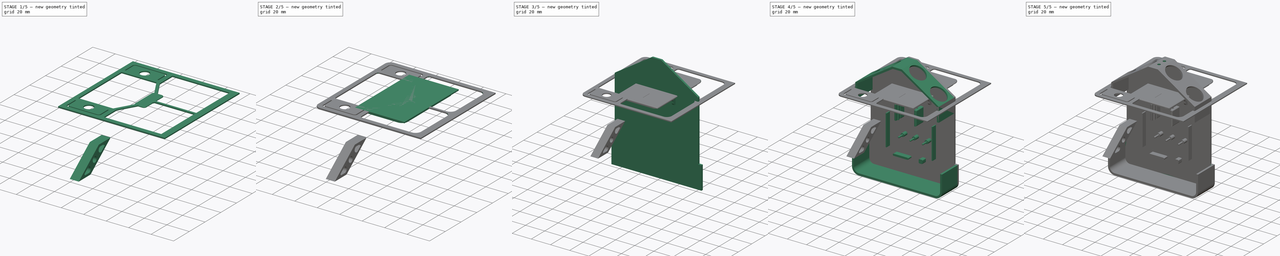
[diagram: build sequence overview — one tinted view per stage of 5, left to right]
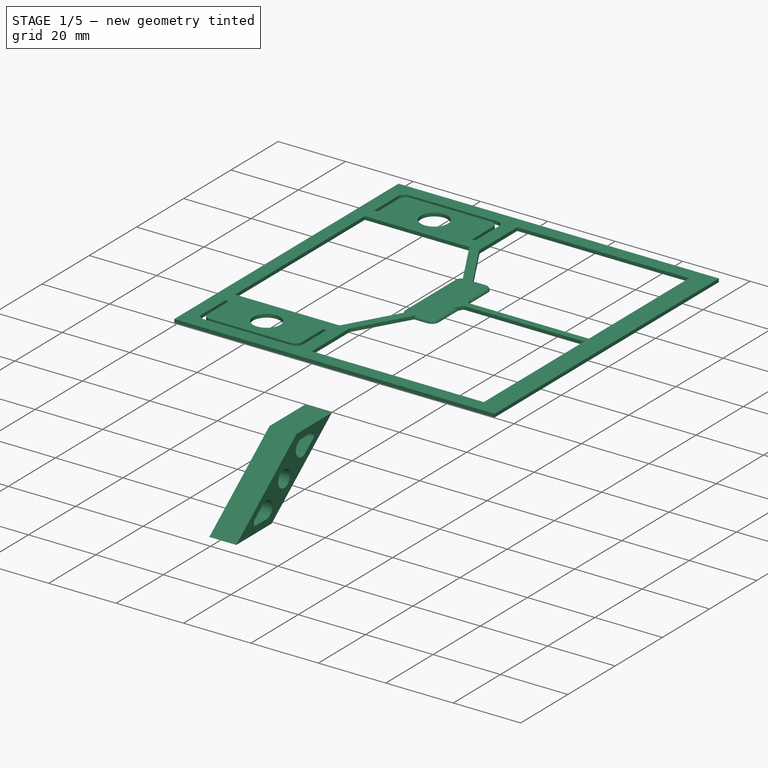
[diagram: stage 1 of 5 — iso view after this stage's code; geometry added in this stage tinted green]
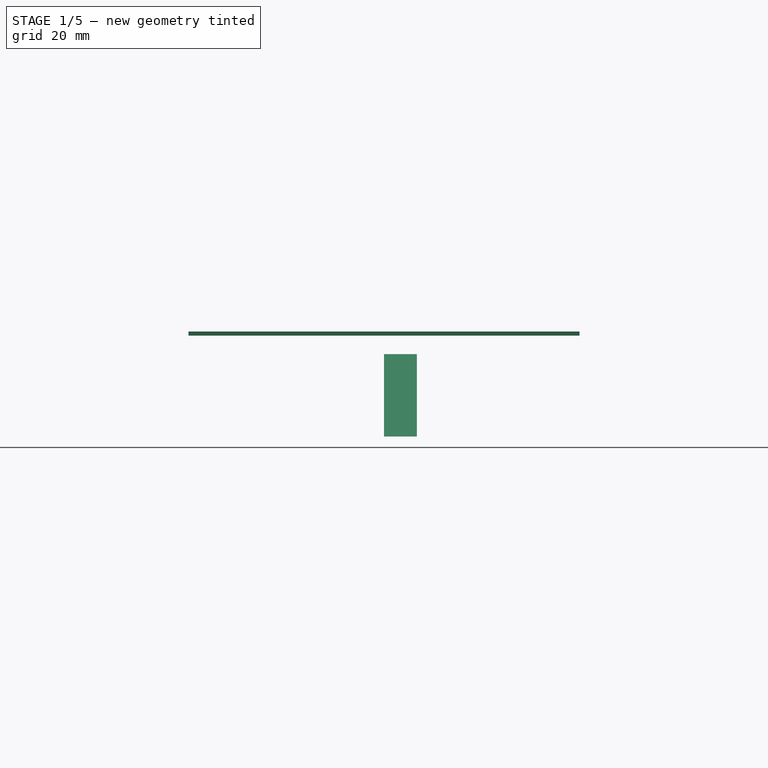
[diagram: stage 1 of 5 — front view after this stage's code; geometry added in this stage tinted green]
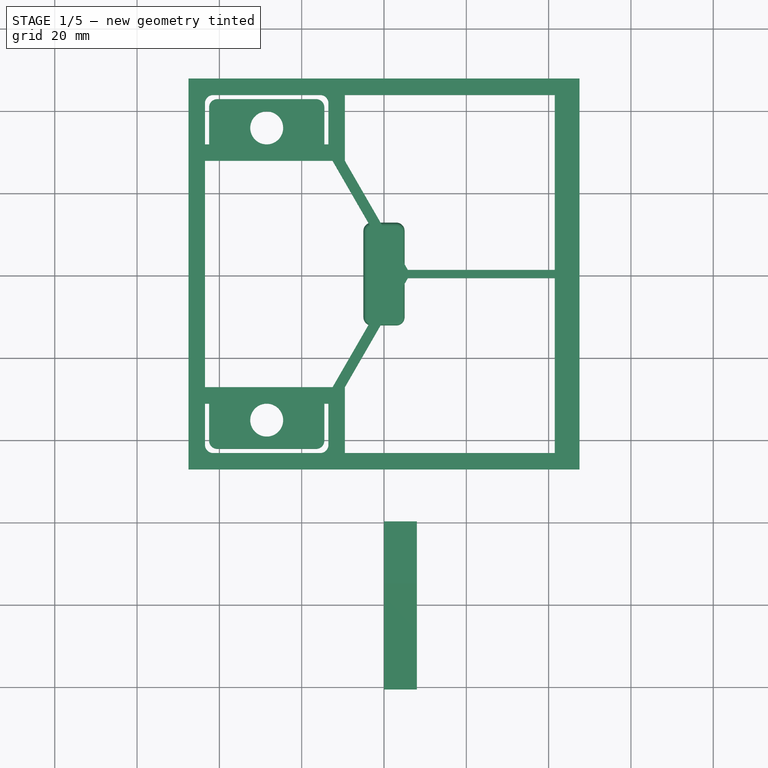
[diagram: stage 1 of 5 — top view after this stage's code; geometry added in this stage tinted green]
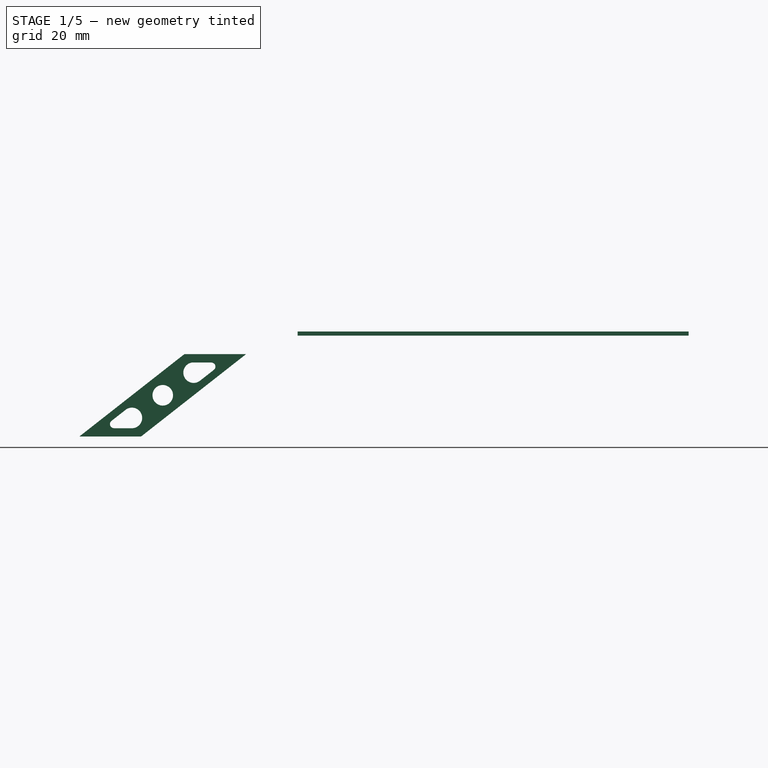
[diagram: stage 1 of 5 — right view after this stage's code; geometry added in this stage tinted green]
FCSTD DOCUMENT  (FreeCAD 0.18R16131 (Git))
Label: CleaningRobot_v2
License: All rights reserved
LicenseURL: http://en.wikipedia.org/wiki/All_rights_reserved
objects: PartDesign::Fillet×24, Sketcher::SketchObject×22, PartDesign::Pad×14, PartDesign::Pocket×8, PartDesign::Body×8, PartDesign::Chamfer×3
note: 101 computed .brp shape members not serialized (recipe doc carries the construction recipe); baked Part::Feature solids carry a one-line shape summary decoded from their .brp

FEATURE [PartDesign::Body] Body003  label="Cap"
  Group = -> [Sketch013,Pad006,Sketch014,Pad007,Fillet005,Fillet006,Chamfer002,Fillet007,Fillet008,Fillet009,Sketch015,Pad008,Fillet011,Sketch016,Pocket002,Sketch024,Pocket007]
  Origin = -> Origin003
  Placement = pos=(0,-32,52) rot=(0,0,1;0rad)
  Tip = -> Pocket007
FEATURE [Sketcher::SketchObject] Sketch025
  MapMode = 5
  Placement = pos=(0,0,0) rot=(0.57735,0.57735,0.57735;2.0944rad)
  Support = -> [YZ_Plane004]
  sketch-geometry (11):
    g0: LineSegment StartX=-75.0101 StartY=-4.48581 StartZ=0 EndX=-60.0101 EndY=-4.48581 EndZ=0
    g1: LineSegment StartX=-60.0101 StartY=-4.48581 StartZ=0 EndX=-85.5101 EndY=-24.4858 EndZ=0
    g2: LineSegment StartX=-85.5101 StartY=-24.4858 StartZ=0 EndX=-100.51 EndY=-24.4858 EndZ=0
    g3: LineSegment StartX=-100.51 StartY=-24.4858 StartZ=0 EndX=-75.0101 EndY=-4.48581 EndZ=0
    g4: ArcOfCircle CenterX=-72.7601 CenterY=-8.98581 CenterZ=0 NormalX=0 NormalY=0 NormalZ=1 AngleXU=0 Radius=2.5 StartAngle=1.75784 EndAngle=5.34702
    g5: Circle CenterX=-80.2601 CenterY=-14.4858 CenterZ=0 NormalX=0 NormalY=0 NormalZ=1 AngleXU=0 Radius=2.5
    g6: ArcOfCircle CenterX=-87.7601 CenterY=-19.9858 CenterZ=0 NormalX=0 NormalY=0 NormalZ=1 AngleXU=0 Radius=2.5 StartAngle=4.76986 EndAngle=8.61815
    g7: LineSegment StartX=-73.225 StartY=-6.52941 StartZ=0 EndX=-65.5731 EndY=-6.52941 EndZ=0
    g8: LineSegment StartX=-71.2779 StartY=-10.999 StartZ=0 EndX=-65.5731 EndY=-6.52941 EndZ=0
    g9: LineSegment StartX=-94.9918 StartY=-22.4817 StartZ=0 EndX=-87.6165 EndY=-22.4817 EndZ=0
    g10: LineSegment StartX=-94.9918 StartY=-22.4817 StartZ=0 EndX=-89.49 EndY=-18.1809 EndZ=0
  constraints (27):
    c: Coincident(g0,g1)
    c: Coincident(g1,g2)
    c: Coincident(g2,g3)
    c: Coincident(g3,g0)
    c: Horizontal(g0)
    c: Horizontal(g2)
    c: DistanceX(g0,g0) = 15
    c: DistanceX(g2,g1) = 15
    c: Radius(g4) = 2.5
    c: Radius(g5) = 2.5
    c: Radius(g6) = 2.5
    c: DistanceY(g6,g5) = 5.5
    c: DistanceX(g5,g4) = 7.5
    c: DistanceX(g6,g5) = 7.5
    c: DistanceX(g0,g4) = 2.25
    c: DistanceX(g6,g1) = 2.25
    c: DistanceY(g1,g6) = 4.5
    c: DistanceY(g1,g0) = 20
    c: DistanceY(g4,g0) = 4.5
    c: Horizontal(g7)
    c: Horizontal(g9)
    c: Coincident(g10,g6)
    c: Coincident(g9,g6)
    c: Coincident(g9,g10)
    c: Coincident(g4,g7)
    c: Coincident(g8,g4)
    c: Coincident(g7,g8)
FEATURE [PartDesign::Pad] Pad012
  Length = 8
  Length2 = 100
  Placement = pos=(0,0,0) rot=(0.57735,0.57735,0.57735;2.0944rad)
  Profile = -> Sketch025
  Type = 0
FEATURE [PartDesign::Body] Body005  label="Plate"
  Group = -> [Sketch026,Pad013,Fillet017,Fillet001,Fillet002]
  Origin = -> Origin005
  Placement = pos=(-48,-105,-26) rot=(0,0,1;0rad)
  Tip = -> Fillet002
FEATURE [Sketcher::SketchObject] Sketch027
  MapMode = 5
  Support = -> [XY_Plane006]
  sketch-geometry (40):
    g0: LineSegment StartX=-47.5 StartY=47.5 StartZ=0 EndX=47.5 EndY=47.5 EndZ=0
    g1: LineSegment StartX=47.5 StartY=47.5 StartZ=0 EndX=47.5 EndY=-47.5 EndZ=0
    g2: LineSegment StartX=47.5 StartY=-47.5 StartZ=0 EndX=-47.5 EndY=-47.5 EndZ=0
    g3: LineSegment StartX=-47.5 StartY=-47.5 StartZ=0 EndX=-47.5 EndY=47.5 EndZ=0
    g4: LineSegment StartX=-43.5 StartY=-31.5 StartZ=0 EndX=-42.5 EndY=-31.5 EndZ=0
    g5: LineSegment StartX=-42.5 StartY=-31.5 StartZ=0 EndX=-42.5 EndY=-42.5 EndZ=0
    g6: LineSegment StartX=-43.5 StartY=-43.5 StartZ=0 EndX=-43.5 EndY=-31.5 EndZ=0
    g7: LineSegment StartX=-14.5 StartY=-31.5 StartZ=0 EndX=-13.5 EndY=-31.5 EndZ=0
    g8: LineSegment StartX=-13.5 StartY=-31.5 StartZ=0 EndX=-13.5 EndY=-43.5 EndZ=0
    g9: LineSegment StartX=-13.5 StartY=-43.5 StartZ=0 EndX=-43.5 EndY=-43.5 EndZ=0
    g10: LineSegment StartX=-42.5 StartY=-42.5 StartZ=0 EndX=-14.5 EndY=-42.5 EndZ=0
    g11: LineSegment StartX=-14.5 StartY=-42.5 StartZ=0 EndX=-14.5 EndY=-31.5 EndZ=0
    g12: Circle CenterX=-28.5 CenterY=-35.5 CenterZ=0 NormalX=0 NormalY=0 NormalZ=1 AngleXU=0 Radius=4
    g13: LineSegment StartX=-42.5 StartY=31.5 StartZ=0 EndX=-43.5 EndY=31.5 EndZ=0
    g14: LineSegment StartX=-43.5 StartY=31.5 StartZ=0 EndX=-43.5 EndY=43.5 EndZ=0
    g15: LineSegment StartX=-43.5 StartY=43.5 StartZ=0 EndX=-13.5 EndY=43.5 EndZ=0
    g16: LineSegment StartX=-13.5 StartY=43.5 StartZ=0 EndX=-13.5 EndY=31.5 EndZ=0
    g17: LineSegment StartX=-13.5 StartY=31.5 StartZ=0 EndX=-14.5 EndY=31.5 EndZ=0
    g18: LineSegment StartX=-14.5 StartY=31.5 StartZ=0 EndX=-14.5 EndY=42.5 EndZ=0
    g19: LineSegment StartX=-14.5 StartY=42.5 StartZ=0 EndX=-42.5 EndY=42.5 EndZ=0
    g20: LineSegment StartX=-42.5 StartY=42.5 StartZ=0 EndX=-42.5 EndY=31.5 EndZ=0
    g21: Circle CenterX=-28.5 CenterY=35.5 CenterZ=0 NormalX=0 NormalY=0 NormalZ=1 AngleXU=0 Radius=4
    g22: LineSegment StartX=-43.5 StartY=27.5 StartZ=0 EndX=-12.5001 EndY=27.5 EndZ=0
    g23: LineSegment StartX=-9.5 StartY=-27.5 StartZ=0 EndX=-9.50012 EndY=-27.5 EndZ=0
    g24: LineSegment StartX=-43.5 StartY=-27.5 StartZ=0 EndX=-43.5 EndY=27.5 EndZ=0
    g25: LineSegment StartX=-9.5 StartY=43.5 StartZ=0 EndX=41.5 EndY=43.5 EndZ=0
    g26: LineSegment StartX=41.5 StartY=43.5 StartZ=0 EndX=41.5 EndY=1 EndZ=0
    g27: LineSegment StartX=41.5 StartY=-43.5 StartZ=0 EndX=-9.5 EndY=-43.5 EndZ=0
    g28: LineSegment StartX=-9.5 StartY=-43.5 StartZ=0 EndX=-9.5 EndY=-27.5 EndZ=0
    g29: LineSegment StartX=-9.5 StartY=27.5 StartZ=0 EndX=-9.5 EndY=43.5 EndZ=0
    g30: LineSegment StartX=-9.5 StartY=27.5 StartZ=0 EndX=5.79968 EndY=1 EndZ=0
    g31: LineSegment StartX=5.79968 StartY=1 StartZ=0 EndX=41.5 EndY=1 EndZ=0
    g32: LineSegment StartX=41.5 StartY=-1 StartZ=0 EndX=5.79968 EndY=-1 EndZ=0
    g33: LineSegment StartX=5.79968 StartY=-1 StartZ=0 EndX=-9.50012 EndY=-27.5 EndZ=0
    g34: LineSegment StartX=-12.5001 StartY=-27.5 StartZ=0 EndX=2.79968 EndY=-1 EndZ=0
    g35: LineSegment StartX=2.79968 StartY=-1 StartZ=0 EndX=2.79968 EndY=1 EndZ=0
    g36: LineSegment StartX=2.79968 StartY=1 StartZ=0 EndX=-12.5001 EndY=27.5 EndZ=0
    g37: LineSegment StartX=41.5 StartY=-1 StartZ=0 EndX=41.5 EndY=-43.5 EndZ=0
    g38: LineSegment StartX=-9.5 StartY=27.5 StartZ=0 EndX=-9.5 EndY=27.5 EndZ=0
    g39: LineSegment StartX=-12.5001 StartY=-27.5 StartZ=0 EndX=-43.5 EndY=-27.5 EndZ=0
  constraints (112):
    c: Coincident(g0,g1)
    c: Coincident(g1,g2)
    c: Coincident(g2,g3)
    c: Coincident(g3,g0)
    c: Horizontal(g0)
    c: Vertical(g1)
    c: DistanceY(g2,g0) = 95
    c: Symmetric(g0,g2,g-1)
    c: Symmetric(g2,g1,g-2)
    c: DistanceX(g2,g1) = 95
    c: Coincident(g4,g5)
    c: Coincident(g6,g4)
    c: Horizontal(g4)
    c: Vertical(g5)
    c: Vertical(g6)
    c: Coincident(g7,g8)
    c: Coincident(g11,g7)
    c: Horizontal(g7)
    c: Vertical(g8)
    c: Horizontal(g9)
    c: Coincident(g10,g5)
    c: Coincident(g9,g6)
    c: Coincident(g10,g11)
    c: Coincident(g9,g8)
    c: DistanceY(g8,g10) = 1
    c: DistanceX(g10,g8) = 1
    c: DistanceX(g6,g5) = 1
    c: Vertical(g11)
    c: DistanceY(g8,g7) = 12
    c: DistanceY(g6,g4) = 12
    c: Horizontal(g10)
    c: DistanceX(g6,g8) = 30
    c: Radius(g12) = 4
    c: DistanceX(g6,g12) = 15
    c: DistanceY(g6,g12) = 8
    c: Coincident(g20,g13)
    c: Coincident(g13,g14)
    c: Horizontal(g13)
    c: Vertical(g14)
    c: Horizontal(g15)
    c: Coincident(g16,g17)
    c: Coincident(g17,g18)
    c: Horizontal(g17)
    c: Vertical(g16)
    c: Vertical(g18)
    c: Coincident(g15,g14)
    c: Coincident(g15,g16)
    c: Coincident(g18,g19)
    c: Coincident(g20,g19)
    c: DistanceX(g18,g15) = 1
    c: DistanceX(g14,g19) = 1
    c: DistanceY(g18,g15) = 1
    c: Horizontal(g19)
    c: Vertical(g20)
    c: DistanceY(g16,g15) = 12
    c: DistanceY(g13,g14) = 12
    c: DistanceX(g14,g15) = 30
    c: Radius(g21) = 4
    c: DistanceY(g21,g14) = 8
    c: DistanceX(g14,g21) = 15
    c: DistanceX(g2,g6) = 4
    c: DistanceY(g2,g6) = 4
    c: DistanceY(g14,g0) = 4
    c: DistanceX(g0,g14) = 4
    c: Coincident(g39,g24)
    c: Coincident(g24,g22)
    c: Horizontal(g22)
    c: Horizontal(g23)
    c: Vertical(g24)
    c: Coincident(g25,g26)
    c: Coincident(g37,g27)
    c: Coincident(g27,g28)
    c: Coincident(g29,g25)
    c: Horizontal(g25)
    c: Horizontal(g27)
    c: Vertical(g26)
    c: Vertical(g28)
    c: Coincident(g28,g23)
    c: Coincident(g29,g38)
    c: Tangent(g28,g29)
    c: DistanceX(g25,g0) = 6
    c: DistanceY(g25,g0) = 4
    c: DistanceY(g1,g37) = 4
    c: DistanceX(g7,g23) = 4
    c: DistanceY(g7,g23) = 4
    c: DistanceY(g38,g16) = 4
    c: DistanceX(g2,g39) = 4
    c: Coincident(g30,g31)
    c: Coincident(g32,g33)
    c: Coincident(g34,g35)
    c: Coincident(g35,g36)
    c: Horizontal(g31)
    c: Horizontal(g32)
    c: Symmetric(g30,g32,g-1)
    c: Symmetric(g35,g34,g-1)
    c: DistanceY(g-1,g30) = 1
    c: DistanceY(g-1,g35) = 1
    c: Angle(g31,g30) = 2.0944
    c: Angle(g31,g36) = 2.0944
    c: Angle(g33,g32) = 2.0944
    c: Angle(g34,g32) = 2.0944
    c: DistanceX(g35,g30) = 3
    c: Coincident(g26,g31)
    c: Coincident(g37,g32)
    c: Tangent(g26,g37)
    c: Tangent(g22,g38)
    c: Coincident(g36,g22)
    c: Coincident(g30,g38)
    c: Tangent(g23,g39)
    c: Coincident(g34,g39)
    c: Coincident(g33,g23)
    c: DistanceX(g30,g29) = 0
FEATURE [PartDesign::Pad] Pad014
  Length = 1
  Length2 = 100
  Profile = -> Sketch027
  Type = 0
FEATURE [PartDesign::Fillet] Fillet018
  Base = -> Pad014 [Edge83,Edge80,Edge91,Edge95,Edge71,Edge67,Edge107,Edge104]
  BaseFeature = -> Pad014
  Radius = 2
FEATURE [PartDesign::Body] Body006  label="Plate (clone)"
  Group = -> [Sketch027,Pad014,Fillet018,Fillet020,Fillet019]
  Origin = -> Origin006
  Placement = pos=(48,-105,-26) rot=(0,0,1;3.14159rad)
  Tip = -> Fillet019
FEATURE [Sketcher::SketchObject] Sketch028
  MapMode = 5
  Support = -> [XY_Plane007]
  sketch-geometry (4):
    g0: LineSegment StartX=-5 StartY=12.5 StartZ=0 EndX=5 EndY=12.5 EndZ=0
    g1: LineSegment StartX=5 StartY=12.5 StartZ=0 EndX=5 EndY=-12.5 EndZ=0
    g2: LineSegment StartX=5 StartY=-12.5 StartZ=0 EndX=-5 EndY=-12.5 EndZ=0
    g3: LineSegment StartX=-5 StartY=-12.5 StartZ=0 EndX=-5 EndY=12.5 EndZ=0
  constraints (10):
    c: Coincident(g0,g1)
    c: Coincident(g1,g2)
    c: Coincident(g2,g3)
    c: Coincident(g3,g0)
    c: Horizontal(g2)
    c: Vertical(g3)
    c: Symmetric(g0,g0,g-2)
    c: Symmetric(g0,g1,g-1)
    c: DistanceX(g0,g0) = 10
    c: DistanceY(g1,g0) = 25
FEATURE [PartDesign::Pad] Pad015
  Length = 1
  Length2 = 100
  Profile = -> Sketch028
  Type = 0
FEATURE [PartDesign::Fillet] Fillet021
  Base = -> Pad015 [Edge8,Edge1,Edge5,Edge2]
  BaseFeature = -> Pad015
  Radius = 2
FEATURE [PartDesign::Fillet] Fillet022
  Base = -> Fillet021 [Edge20,Edge17,Edge16,Edge4]
  BaseFeature = -> Fillet021
  Radius = 0.9
FEATURE [PartDesign::Body] Body007  label="PlateFix"
  Group = -> [Sketch028,Pad015,Fillet021,Fillet022]
  Origin = -> Origin007
  Placement = pos=(0,-130,-23) rot=(0,0,1;0rad)
  Tip = -> Fillet022
FEATURE [Sketcher::SketchObject] Sketch029
  MapMode = 5
  Support = -> [XY_Plane008]
  sketch-geometry (4):
    g0: LineSegment StartX=-5 StartY=12.5 StartZ=0 EndX=5 EndY=12.5 EndZ=0
    g1: LineSegment StartX=5 StartY=12.5 StartZ=0 EndX=5 EndY=-12.5 EndZ=0
    g2: LineSegment StartX=5 StartY=-12.5 StartZ=0 EndX=-5 EndY=-12.5 EndZ=0
    g3: LineSegment StartX=-5 StartY=-12.5 StartZ=0 EndX=-5 EndY=12.5 EndZ=0
  constraints (10):
    c: Coincident(g0,g1)
    c: Coincident(g1,g2)
    c: Coincident(g2,g3)
    c: Coincident(g3,g0)
    c: Horizontal(g2)
    c: Vertical(g3)
    c: Symmetric(g0,g0,g-2)
    c: Symmetric(g0,g1,g-1)
    c: DistanceX(g0,g0) = 10
    c: DistanceY(g1,g0) = 25
FEATURE [PartDesign::Pad] Pad016
  Length = 1
  Length2 = 100
  Profile = -> Sketch029
  Type = 0
FEATURE [PartDesign::Fillet] Fillet023
  Base = -> Pad016 [Edge8,Edge1,Edge5,Edge2]
  BaseFeature = -> Pad016
  Radius = 2
FEATURE [PartDesign::Fillet] Fillet024
  Base = -> Fillet023 [Edge20,Edge17,Edge16,Edge4]
  BaseFeature = -> Fillet023
  Radius = 0.9
FEATURE [PartDesign::Body] Body008  label="PlateFix (clone)"
  Group = -> [Sketch029,Pad016,Fillet023,Fillet024]
  Origin = -> Origin008
  Placement = pos=(0,-74,-23) rot=(0,0,1;0rad)
  Tip = -> Fillet024
FEATURE [PartDesign::Fillet] Fillet025
  Base = -> Pad012 [Edge26,Edge17]
  BaseFeature = -> Pad012
  Placement = pos=(0,0,0) rot=(0.57735,0.57735,0.57735;2.0944rad)
  Radius = 1
FEATURE [PartDesign::Body] Body004  label="PlateSupp"
  Group = -> [Sketch025,Pad012,Fillet025]
  Origin = -> Origin004
  Placement = pos=(-4,-6,2) rot=(0,0,1;0rad)
  Tip = -> Fillet025
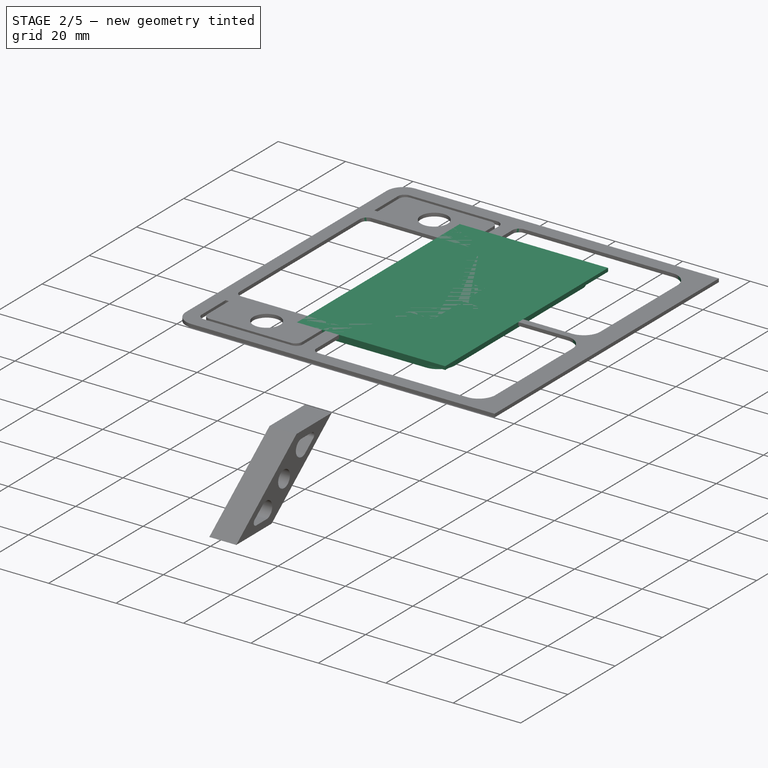
[diagram: stage 2 of 5 — iso view after this stage's code; geometry added in this stage tinted green]
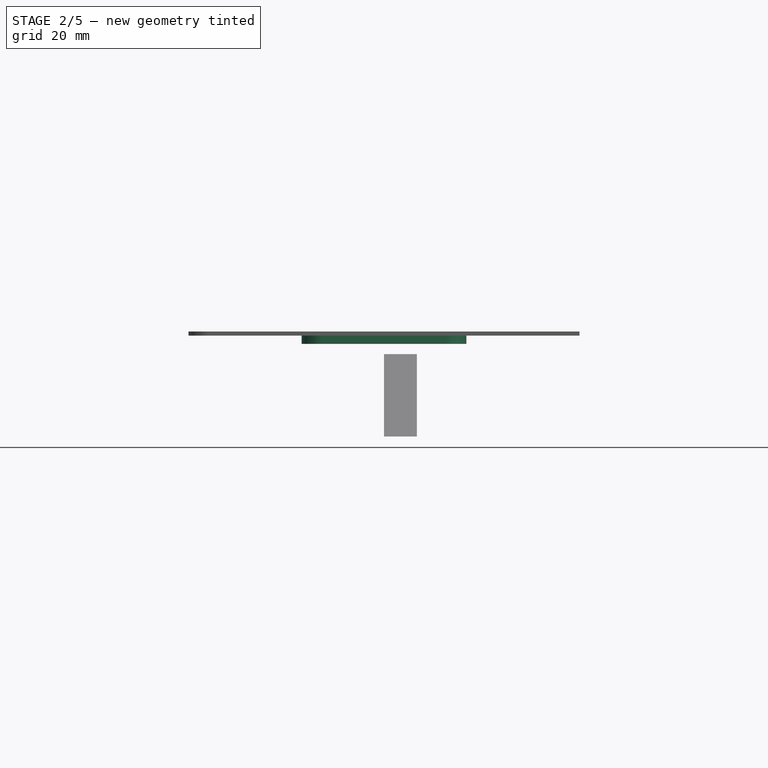
[diagram: stage 2 of 5 — front view after this stage's code; geometry added in this stage tinted green]
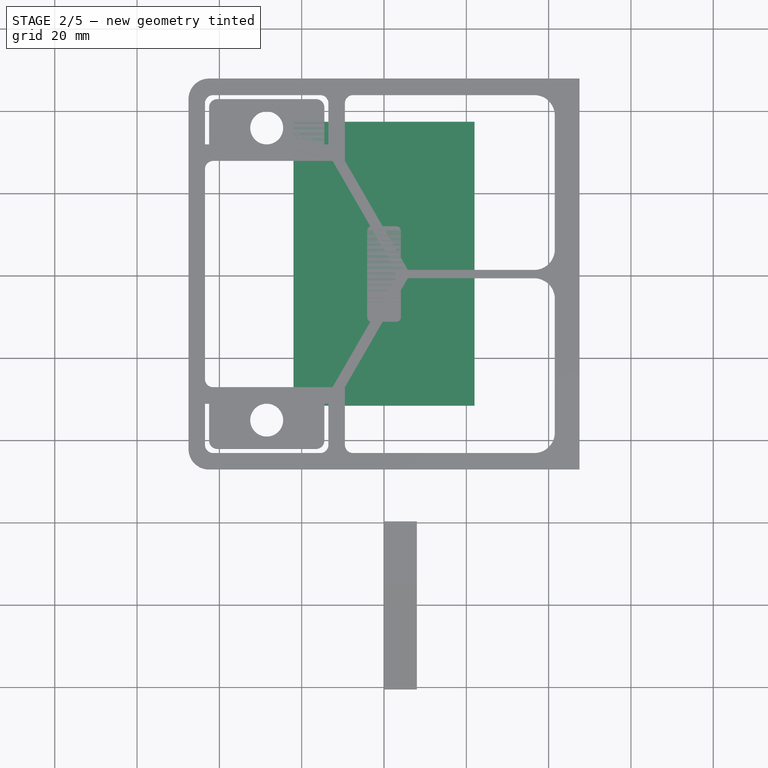
[diagram: stage 2 of 5 — top view after this stage's code; geometry added in this stage tinted green]
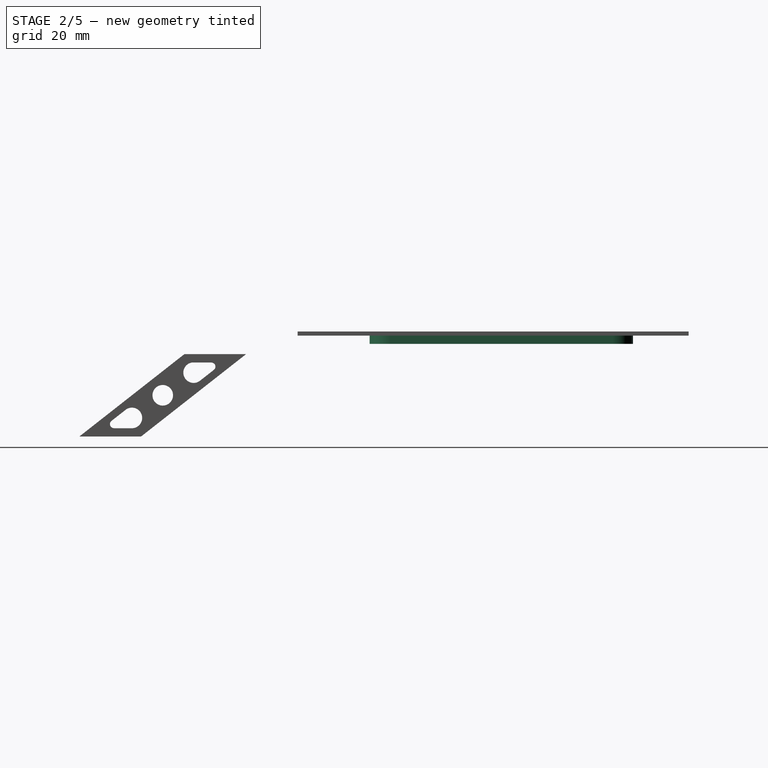
[diagram: stage 2 of 5 — right view after this stage's code; geometry added in this stage tinted green]
FEATURE [Sketcher::SketchObject] Sketch013
  MapMode = 5
  Support = -> [XY_Plane003]
  sketch-geometry (4):
    g0: LineSegment StartX=-22 StartY=37 StartZ=0 EndX=22 EndY=37 EndZ=0
    g1: LineSegment StartX=22 StartY=37 StartZ=0 EndX=22 EndY=-32 EndZ=0
    g2: LineSegment StartX=22 StartY=-32 StartZ=0 EndX=-22 EndY=-32 EndZ=0
    g3: LineSegment StartX=-22 StartY=-32 StartZ=0 EndX=-22 EndY=37 EndZ=0
  constraints (11):
    c: Coincident(g0,g1)
    c: Coincident(g1,g2)
    c: Coincident(g2,g3)
    c: Coincident(g3,g0)
    c: Horizontal(g0)
    c: Vertical(g3)
    c: Symmetric(g2,g1,g-2)
    c: DistanceX(g2,g1) = 44
    c: Vertical(g1)
    c: DistanceY(g1,g0) = 69
    c: DistanceY(g1,g-1) = 32
FEATURE [PartDesign::Pad] Pad006
  Length = 1
  Length2 = 100
  Profile = -> Sketch013
  Type = 0
FEATURE [Sketcher::SketchObject] Sketch014
  MapMode = 5
  Placement = pos=(0,0,0) rot=(1,0,0;3.14159rad)
  Support = -> [Pad006]
  sketch-geometry (8):
    g0: LineSegment StartX=-20 StartY=30 StartZ=0 EndX=20 EndY=30 EndZ=0
    g1: LineSegment StartX=20 StartY=30 StartZ=0 EndX=20 EndY=-34 EndZ=0
    g2: LineSegment StartX=20 StartY=-34 StartZ=0 EndX=-20 EndY=-34 EndZ=0
    g3: LineSegment StartX=-20 StartY=-34 StartZ=0 EndX=-20 EndY=30 EndZ=0
    g4: LineSegment StartX=-18 StartY=28 StartZ=0 EndX=18 EndY=28 EndZ=0
    g5: LineSegment StartX=18 StartY=28 StartZ=0 EndX=18 EndY=-32 EndZ=0
    g6: LineSegment StartX=18 StartY=-32 StartZ=0 EndX=-18 EndY=-32 EndZ=0
    g7: LineSegment StartX=-18 StartY=-32 StartZ=0 EndX=-18 EndY=28 EndZ=0
  constraints (22):
    c: Coincident(g0,g1)
    c: Coincident(g1,g2)
    c: Coincident(g2,g3)
    c: Coincident(g3,g0)
    c: Horizontal(g0)
    c: Vertical(g3)
    c: Coincident(g4,g5)
    c: Coincident(g5,g6)
    c: Coincident(g6,g7)
    c: Coincident(g7,g4)
    c: Horizontal(g4)
    c: Vertical(g7)
    c: Symmetric(g2,g1,g-2)
    c: Symmetric(g6,g5,g-2)
    c: DistanceX(g2,g1) = 40
    c: DistanceY(g1,g0) = 64
    c: DistanceY(g1,g5) = 2
    c: DistanceX(g5,g1) = 2
    c: DistanceY(g4,g0) = 2
    c: DistanceY(g-1,g0) = 30
    c: Vertical(g5)
    c: Vertical(g1)
FEATURE [PartDesign::Pad] Pad007
  BaseFeature = -> Pad006
  Length = 2
  Length2 = 100
  Profile = -> Sketch014
  Type = 0
FEATURE [PartDesign::Fillet] Fillet005
  Base = -> Pad007 [Edge32,Edge29,Edge30,Edge34]
  BaseFeature = -> Pad007
  Radius = 3
FEATURE [PartDesign::Fillet] Fillet006
  Base = -> Fillet005 [Edge30,Edge29,Edge34,Edge32]
  BaseFeature = -> Fillet005
  Radius = 5
FEATURE [Sketcher::SketchObject] Sketch026
  MapMode = 5
  Support = -> [XY_Plane005]
  sketch-geometry (40):
    g0: LineSegment StartX=-47.5 StartY=47.5 StartZ=0 EndX=47.5 EndY=47.5 EndZ=0
    g1: LineSegment StartX=47.5 StartY=47.5 StartZ=0 EndX=47.5 EndY=-47.5 EndZ=0
    g2: LineSegment StartX=47.5 StartY=-47.5 StartZ=0 EndX=-47.5 EndY=-47.5 EndZ=0
    g3: LineSegment StartX=-47.5 StartY=-47.5 StartZ=0 EndX=-47.5 EndY=47.5 EndZ=0
    g4: LineSegment StartX=-43.5 StartY=-31.5 StartZ=0 EndX=-42.5 EndY=-31.5 EndZ=0
    g5: LineSegment StartX=-42.5 StartY=-31.5 StartZ=0 EndX=-42.5 EndY=-42.5 EndZ=0
    g6: LineSegment StartX=-43.5 StartY=-43.5 StartZ=0 EndX=-43.5 EndY=-31.5 EndZ=0
    g7: LineSegment StartX=-14.5 StartY=-31.5 StartZ=0 EndX=-13.5 EndY=-31.5 EndZ=0
    g8: LineSegment StartX=-13.5 StartY=-31.5 StartZ=0 EndX=-13.5 EndY=-43.5 EndZ=0
    g9: LineSegment StartX=-13.5 StartY=-43.5 StartZ=0 EndX=-43.5 EndY=-43.5 EndZ=0
    g10: LineSegment StartX=-42.5 StartY=-42.5 StartZ=0 EndX=-14.5 EndY=-42.5 EndZ=0
    g11: LineSegment StartX=-14.5 StartY=-42.5 StartZ=0 EndX=-14.5 EndY=-31.5 EndZ=0
    g12: Circle CenterX=-28.5 CenterY=-35.5 CenterZ=0 NormalX=0 NormalY=0 NormalZ=1 AngleXU=0 Radius=4
    g13: LineSegment StartX=-42.5 StartY=31.5 StartZ=0 EndX=-43.5 EndY=31.5 EndZ=0
    g14: LineSegment StartX=-43.5 StartY=31.5 StartZ=0 EndX=-43.5 EndY=43.5 EndZ=0
    g15: LineSegment StartX=-43.5 StartY=43.5 StartZ=0 EndX=-13.5 EndY=43.5 EndZ=0
    g16: LineSegment StartX=-13.5 StartY=43.5 StartZ=0 EndX=-13.5 EndY=31.5 EndZ=0
    g17: LineSegment StartX=-13.5 StartY=31.5 StartZ=0 EndX=-14.5 EndY=31.5 EndZ=0
    g18: LineSegment StartX=-14.5 StartY=31.5 StartZ=0 EndX=-14.5 EndY=42.5 EndZ=0
    g19: LineSegment StartX=-14.5 StartY=42.5 StartZ=0 EndX=-42.5 EndY=42.5 EndZ=0
    g20: LineSegment StartX=-42.5 StartY=42.5 StartZ=0 EndX=-42.5 EndY=31.5 EndZ=0
    g21: Circle CenterX=-28.5 CenterY=35.5 CenterZ=0 NormalX=0 NormalY=0 NormalZ=1 AngleXU=0 Radius=4
    g22: LineSegment StartX=-43.5 StartY=27.5 StartZ=0 EndX=-12.5001 EndY=27.5 EndZ=0
    g23: LineSegment StartX=-9.5 StartY=-27.5 StartZ=0 EndX=-9.50012 EndY=-27.5 EndZ=0
    g24: LineSegment StartX=-43.5 StartY=-27.5 StartZ=0 EndX=-43.5 EndY=27.5 EndZ=0
    g25: LineSegment StartX=-9.5 StartY=43.5 StartZ=0 EndX=41.5 EndY=43.5 EndZ=0
    g26: LineSegment StartX=41.5 StartY=43.5 StartZ=0 EndX=41.5 EndY=1 EndZ=0
    g27: LineSegment StartX=41.5 StartY=-43.5 StartZ=0 EndX=-9.5 EndY=-43.5 EndZ=0
    g28: LineSegment StartX=-9.5 StartY=-43.5 StartZ=0 EndX=-9.5 EndY=-27.5 EndZ=0
    g29: LineSegment StartX=-9.5 StartY=27.5 StartZ=0 EndX=-9.5 EndY=43.5 EndZ=0
    g30: LineSegment StartX=-9.5 StartY=27.5 StartZ=0 EndX=5.79968 EndY=1 EndZ=0
    g31: LineSegment StartX=5.79968 StartY=1 StartZ=0 EndX=41.5 EndY=1 EndZ=0
    g32: LineSegment StartX=41.5 StartY=-1 StartZ=0 EndX=5.79968 EndY=-1 EndZ=0
    g33: LineSegment StartX=5.79968 StartY=-1 StartZ=0 EndX=-9.50012 EndY=-27.5 EndZ=0
    g34: LineSegment StartX=-12.5001 StartY=-27.5 StartZ=0 EndX=2.79968 EndY=-1 EndZ=0
    g35: LineSegment StartX=2.79968 StartY=-1 StartZ=0 EndX=2.79968 EndY=1 EndZ=0
    g36: LineSegment StartX=2.79968 StartY=1 StartZ=0 EndX=-12.5001 EndY=27.5 EndZ=0
    g37: LineSegment StartX=41.5 StartY=-1 StartZ=0 EndX=41.5 EndY=-43.5 EndZ=0
    g38: LineSegment StartX=-9.5 StartY=27.5 StartZ=0 EndX=-9.5 EndY=27.5 EndZ=0
    g39: LineSegment StartX=-12.5001 StartY=-27.5 StartZ=0 EndX=-43.5 EndY=-27.5 EndZ=0
  constraints (112):
    c: Coincident(g0,g1)
    c: Coincident(g1,g2)
    c: Coincident(g2,g3)
    c: Coincident(g3,g0)
    c: Horizontal(g0)
    c: Vertical(g1)
    c: DistanceY(g2,g0) = 95
    c: Symmetric(g0,g2,g-1)
    c: Symmetric(g2,g1,g-2)
    c: DistanceX(g2,g1) = 95
    c: Coincident(g4,g5)
    c: Coincident(g6,g4)
    c: Horizontal(g4)
    c: Vertical(g5)
    c: Vertical(g6)
    c: Coincident(g7,g8)
    c: Coincident(g11,g7)
    c: Horizontal(g7)
    c: Vertical(g8)
    c: Horizontal(g9)
    c: Coincident(g10,g5)
    c: Coincident(g9,g6)
    c: Coincident(g10,g11)
    c: Coincident(g9,g8)
    c: DistanceY(g8,g10) = 1
    c: DistanceX(g10,g8) = 1
    c: DistanceX(g6,g5) = 1
    c: Vertical(g11)
    c: DistanceY(g8,g7) = 12
    c: DistanceY(g6,g4) = 12
    c: Horizontal(g10)
    c: DistanceX(g6,g8) = 30
    c: Radius(g12) = 4
    c: DistanceX(g6,g12) = 15
    c: DistanceY(g6,g12) = 8
    c: Coincident(g20,g13)
    c: Coincident(g13,g14)
    c: Horizontal(g13)
    c: Vertical(g14)
    c: Horizontal(g15)
    c: Coincident(g16,g17)
    c: Coincident(g17,g18)
    c: Horizontal(g17)
    c: Vertical(g16)
    c: Vertical(g18)
    c: Coincident(g15,g14)
    c: Coincident(g15,g16)
    c: Coincident(g18,g19)
    c: Coincident(g20,g19)
    c: DistanceX(g18,g15) = 1
    c: DistanceX(g14,g19) = 1
    c: DistanceY(g18,g15) = 1
    c: Horizontal(g19)
    c: Vertical(g20)
    c: DistanceY(g16,g15) = 12
    c: DistanceY(g13,g14) = 12
    c: DistanceX(g14,g15) = 30
    c: Radius(g21) = 4
    c: DistanceY(g21,g14) = 8
    c: DistanceX(g14,g21) = 15
    c: DistanceX(g2,g6) = 4
    c: DistanceY(g2,g6) = 4
    c: DistanceY(g14,g0) = 4
    c: DistanceX(g0,g14) = 4
    c: Coincident(g39,g24)
    c: Coincident(g24,g22)
    c: Horizontal(g22)
    c: Horizontal(g23)
    c: Vertical(g24)
    c: Coincident(g25,g26)
    c: Coincident(g37,g27)
    c: Coincident(g27,g28)
    c: Coincident(g29,g25)
    c: Horizontal(g25)
    c: Horizontal(g27)
    c: Vertical(g26)
    c: Vertical(g28)
    c: Coincident(g28,g23)
    c: Coincident(g29,g38)
    c: Tangent(g28,g29)
    c: DistanceX(g25,g0) = 6
    c: DistanceY(g25,g0) = 4
    c: DistanceY(g1,g37) = 4
    c: DistanceX(g7,g23) = 4
    c: DistanceY(g7,g23) = 4
    c: DistanceY(g38,g16) = 4
    c: DistanceX(g2,g39) = 4
    c: Coincident(g30,g31)
    c: Coincident(g32,g33)
    c: Coincident(g34,g35)
    c: Coincident(g35,g36)
    c: Horizontal(g31)
    c: Horizontal(g32)
    c: Symmetric(g30,g32,g-1)
    c: Symmetric(g35,g34,g-1)
    c: DistanceY(g-1,g30) = 1
    c: DistanceY(g-1,g35) = 1
    c: Angle(g31,g30) = 2.0944
    c: Angle(g31,g36) = 2.0944
    c: Angle(g33,g32) = 2.0944
    c: Angle(g34,g32) = 2.0944
    c: DistanceX(g35,g30) = 3
    c: Coincident(g26,g31)
    c: Coincident(g37,g32)
    c: Tangent(g26,g37)
    c: Tangent(g22,g38)
    c: Coincident(g36,g22)
    c: Coincident(g30,g38)
    c: Tangent(g23,g39)
    c: Coincident(g34,g39)
    c: Coincident(g33,g23)
    c: DistanceX(g30,g29) = 0
FEATURE [PartDesign::Pad] Pad013
  Length = 1
  Length2 = 100
  Profile = -> Sketch026
  Type = 0
FEATURE [PartDesign::Fillet] Fillet017
  Base = -> Pad013 [Edge83,Edge80,Edge91,Edge95,Edge71,Edge67,Edge107,Edge104]
  BaseFeature = -> Pad013
  Radius = 2
FEATURE [PartDesign::Fillet] Fillet001
  Base = -> Fillet017 [Edge109,Edge112,Edge128,Edge119,Edge127,Edge124]
  BaseFeature = -> Fillet017
  Radius = 5
FEATURE [PartDesign::Fillet] Fillet002
  Base = -> Fillet001 [Edge160,Edge98,Edge100,Edge144]
  BaseFeature = -> Fillet001
  Radius = 2
FEATURE [PartDesign::Fillet] Fillet020
  Base = -> Fillet018 [Edge109,Edge112,Edge128,Edge119,Edge127,Edge124]
  BaseFeature = -> Fillet018
  Radius = 5
FEATURE [PartDesign::Fillet] Fillet019
  Base = -> Fillet020 [Edge160,Edge98,Edge100,Edge144]
  BaseFeature = -> Fillet020
  Radius = 2
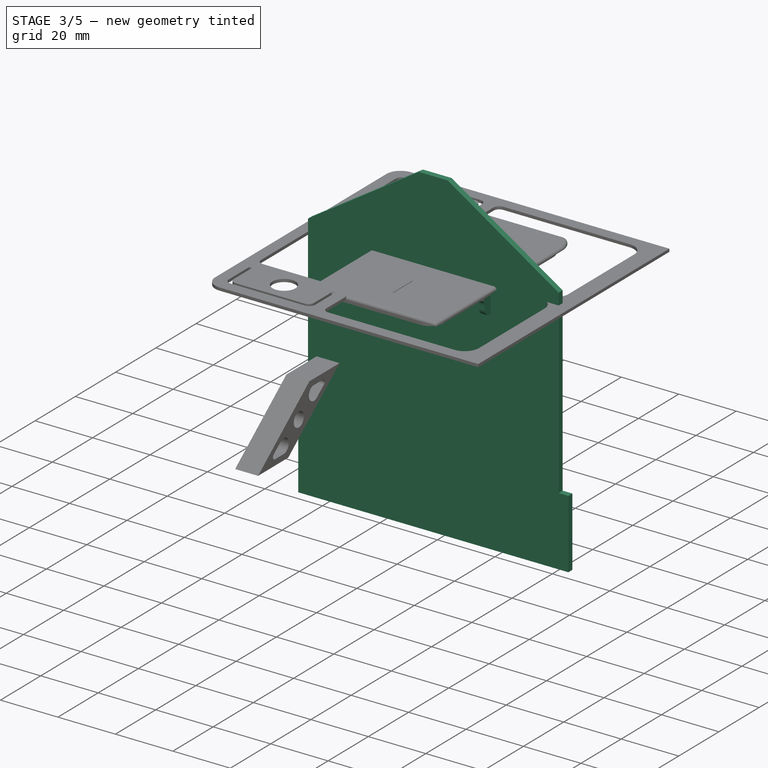
[diagram: stage 3 of 5 — iso view after this stage's code; geometry added in this stage tinted green]
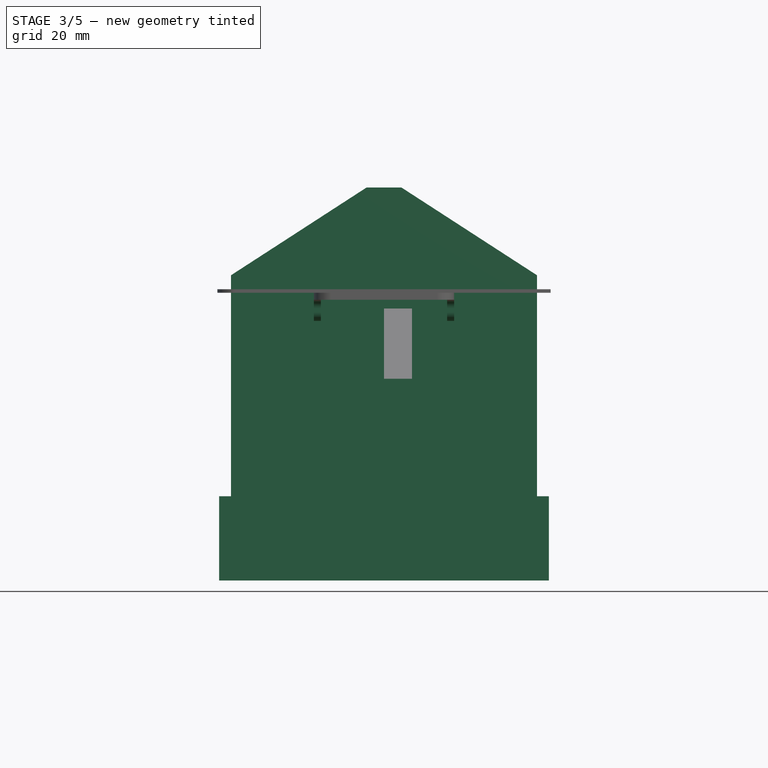
[diagram: stage 3 of 5 — front view after this stage's code; geometry added in this stage tinted green]
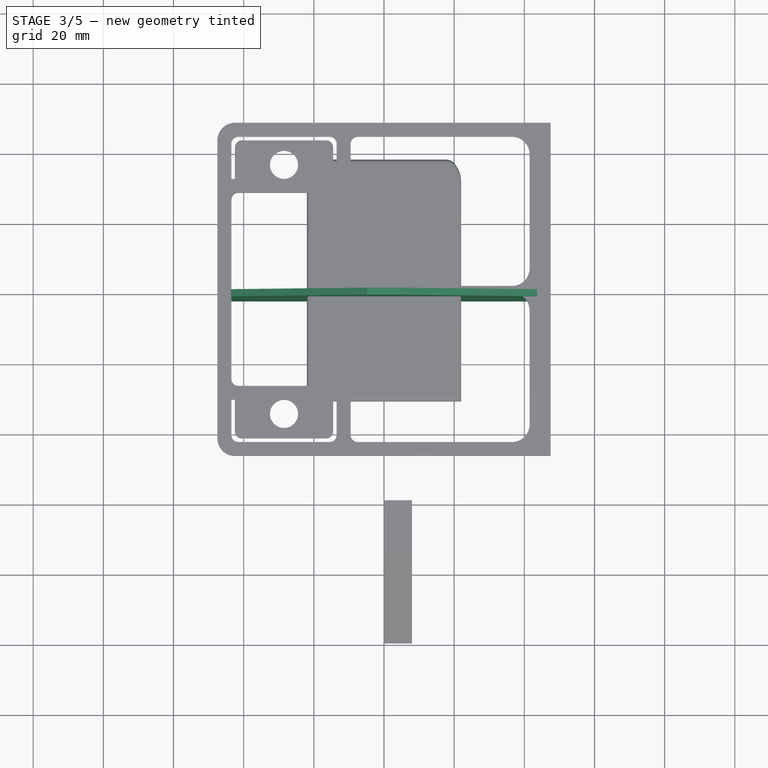
[diagram: stage 3 of 5 — top view after this stage's code; geometry added in this stage tinted green]
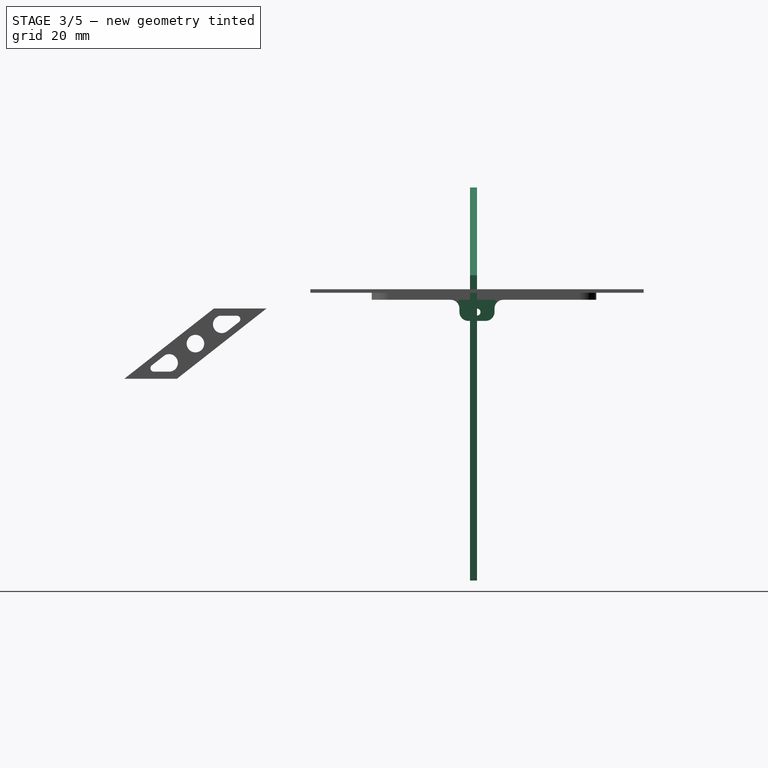
[diagram: stage 3 of 5 — right view after this stage's code; geometry added in this stage tinted green]
FEATURE [Sketcher::SketchObject] Sketch
  MapMode = 5
  Placement = pos=(0,0,0) rot=(1,0,0;1.5708rad)
  Support = -> [XZ_Plane]
  sketch-geometry (10):
    g0: LineSegment StartX=-5 StartY=30 StartZ=0 EndX=5 EndY=30 EndZ=0
    g1: LineSegment StartX=-5 StartY=30 StartZ=0 EndX=-43.6135 EndY=5 EndZ=0
    g2: LineSegment StartX=5 StartY=30 StartZ=0 EndX=43.6135 EndY=5 EndZ=0
    g3: LineSegment StartX=-43.6135 StartY=5 StartZ=0 EndX=-43.6135 EndY=-58 EndZ=0
    g4: LineSegment StartX=43.6135 StartY=5 StartZ=0 EndX=43.6135 EndY=-58 EndZ=0
    g5: LineSegment StartX=-47 StartY=-58 StartZ=0 EndX=-43.6135 EndY=-58 EndZ=0
    g6: LineSegment StartX=47 StartY=-58 StartZ=0 EndX=47 EndY=-82 EndZ=0
    g7: LineSegment StartX=47 StartY=-82 StartZ=0 EndX=-47 EndY=-82 EndZ=0
    g8: LineSegment StartX=-47 StartY=-82 StartZ=0 EndX=-47 EndY=-58 EndZ=0
    g9: LineSegment StartX=43.6135 StartY=-58 StartZ=0 EndX=47 EndY=-58 EndZ=0
  constraints (26):
    c: Symmetric(g0,g0,g-2)
    c: Symmetric(g1,g2,g-2)
    c: Coincident(g1,g0)
    c: Distance(g1,g0) = 46
    c: DistanceX(g0,g0) = 10
    c: Coincident(g2,g0)
    c: DistanceY(g1,g0) = 25
    c: Coincident(g3,g1)
    c: Vertical(g3)
    c: Coincident(g4,g2)
    c: Vertical(g4)
    c: DistanceY(g-1,g0) = 30
    c: Coincident(g9,g6)
    c: Coincident(g6,g7)
    c: Coincident(g7,g8)
    c: Coincident(g8,g5)
    c: Horizontal(g5)
    c: Vertical(g6)
    c: Vertical(g8)
    c: Symmetric(g7,g6,g-2)
    c: DistanceX(g7,g6) = 94
    c: DistanceY(g6,g9) = 24
    c: DistanceY(g6,g0) = 112
    c: Coincident(g5,g3)
    c: Tangent(g5,g9)
    c: Coincident(g4,g9)
FEATURE [PartDesign::Pad] Pad  label="Bottom - Base"
  Length = 2
  Length2 = 100
  Placement = pos=(0,0,0) rot=(1,0,0;1.5708rad)
  Profile = -> Sketch
  Type = 0
FEATURE [PartDesign::Chamfer] Chamfer002
  Base = -> Fillet006 [Edge54,Edge53]
  BaseFeature = -> Fillet006
  Size = 3
FEATURE [PartDesign::Fillet] Fillet007
  Base = -> Chamfer002 [Edge18,Edge20]
  BaseFeature = -> Chamfer002
  Radius = 8
FEATURE [PartDesign::Fillet] Fillet008
  Base = -> Fillet007 [Edge18,Edge22]
  BaseFeature = -> Fillet007
  Radius = 3
FEATURE [PartDesign::Fillet] Fillet009
  Base = -> Fillet008 [Face18]
  BaseFeature = -> Fillet008
  Radius = 0.9
FEATURE [Sketcher::SketchObject] Sketch015
  MapMode = 5
  Placement = pos=(0,0,-2) rot=(1,0,0;3.14159rad)
  Support = -> [Fillet009]
  sketch-geometry (8):
    g0: LineSegment StartX=-20 StartY=5 StartZ=0 EndX=-18 EndY=5 EndZ=0
    g1: LineSegment StartX=-18 StartY=5 StartZ=0 EndX=-18 EndY=-5 EndZ=0
    g2: LineSegment StartX=-18 StartY=-5 StartZ=0 EndX=-20 EndY=-5 EndZ=0
    g3: LineSegment StartX=-20 StartY=-5 StartZ=0 EndX=-20 EndY=5 EndZ=0
    g4: LineSegment StartX=18 StartY=5 StartZ=0 EndX=20 EndY=5 EndZ=0
    g5: LineSegment StartX=20 StartY=5 StartZ=0 EndX=20 EndY=-5 EndZ=0
    g6: LineSegment StartX=20 StartY=-5 StartZ=0 EndX=18 EndY=-5 EndZ=0
    g7: LineSegment StartX=18 StartY=-5 StartZ=0 EndX=18 EndY=5 EndZ=0
  constraints (20):
    c: Coincident(g0,g1)
    c: Coincident(g1,g2)
    c: Coincident(g2,g3)
    c: Coincident(g3,g0)
    c: Horizontal(g0)
    c: Horizontal(g2)
    c: Vertical(g1)
    c: Coincident(g4,g5)
    c: Coincident(g5,g6)
    c: Coincident(g6,g7)
    c: Coincident(g7,g4)
    c: Horizontal(g6)
    c: Vertical(g7)
    c: Symmetric(g0,g4,g-2)
    c: Symmetric(g4,g0,g-2)
    c: Symmetric(g4,g5,g-1)
    c: DistanceY(g5,g4) = 10
    c: DistanceX(g6,g5) = 2
    c: DistanceX(g1,g6) = 36
    c: Symmetric(g0,g2,g-1)
FEATURE [PartDesign::Pad] Pad008
  BaseFeature = -> Fillet009
  Length = 6
  Length2 = 100
  Profile = -> Sketch015
  Type = 0
FEATURE [PartDesign::Fillet] Fillet011
  Base = -> Pad008 [Edge79,Edge107,Edge85,Edge115,Edge105,Edge75,Edge90,Edge69]
  BaseFeature = -> Pad008
  Radius = 2.5
FEATURE [Sketcher::SketchObject] Sketch016
  MapMode = 5
  Placement = pos=(-20,0,0) rot=(0.57735,-0.57735,-0.57735;2.0944rad)
  Support = -> [Fillet011]
  sketch-geometry (1):
    g0: Circle CenterX=0 CenterY=-5.5 CenterZ=0 NormalX=0 NormalY=0 NormalZ=1 AngleXU=0 Radius=1
  constraints (3):
    c: Radius(g0) = 1
    c: DistanceX(g0,g-1) = 0
    c: DistanceY(g0,g-1) = 5.5
FEATURE [PartDesign::Pocket] Pocket002
  BaseFeature = -> Fillet011
  Length = 41
  Length2 = 100
  Profile = -> Sketch016
  Type = 0
FEATURE [PartDesign::Body] Body  label="Bottom"
  Group = -> [Sketch,Pad,Sketch001,Pad001,Sketch002,Pocket,Sketch003,Pocket001,Fillet,Fillet010,Sketch019,Pad010,Sketch020,Pad011,Sketch021,Pocket004,Fillet015,Fillet016,Sketch022,Pocket005,Sketch023,Pocket006]
  Origin = -> Origin
  Placement = pos=(0,0,0) rot=(-1,0,0;1.5708rad)
  Tip = -> Pocket006
FEATURE [Sketcher::SketchObject] Sketch024
  MapMode = 5
  Placement = pos=(0,0,1) rot=(0,0,1;0rad)
  Support = -> [Pocket002]
  sketch-geometry (4):
    g0: LineSegment StartX=-0.1 StartY=28 StartZ=0 EndX=0.1 EndY=28 EndZ=0
    g1: LineSegment StartX=0.1 StartY=28 StartZ=0 EndX=0.1 EndY=-22 EndZ=0
    g2: LineSegment StartX=0.1 StartY=-22 StartZ=0 EndX=-0.1 EndY=-22 EndZ=0
    g3: LineSegment StartX=-0.1 StartY=-22 StartZ=0 EndX=-0.1 EndY=28 EndZ=0
  constraints (10):
    c: Coincident(g0,g1)
    c: Coincident(g1,g2)
    c: Coincident(g2,g3)
    c: Coincident(g3,g0)
    c: Horizontal(g0)
    c: Vertical(g3)
    c: Symmetric(g2,g1,g-2)
    c: DistanceX(g0,g0) = 0.2
    c: DistanceY(g1,g0) = 50
    c: DistanceY(g1,g-1) = 22
FEATURE [PartDesign::Pocket] Pocket007
  BaseFeature = -> Pocket002
  Length = 0.2
  Length2 = 100
  Profile = -> Sketch024
  Type = 0
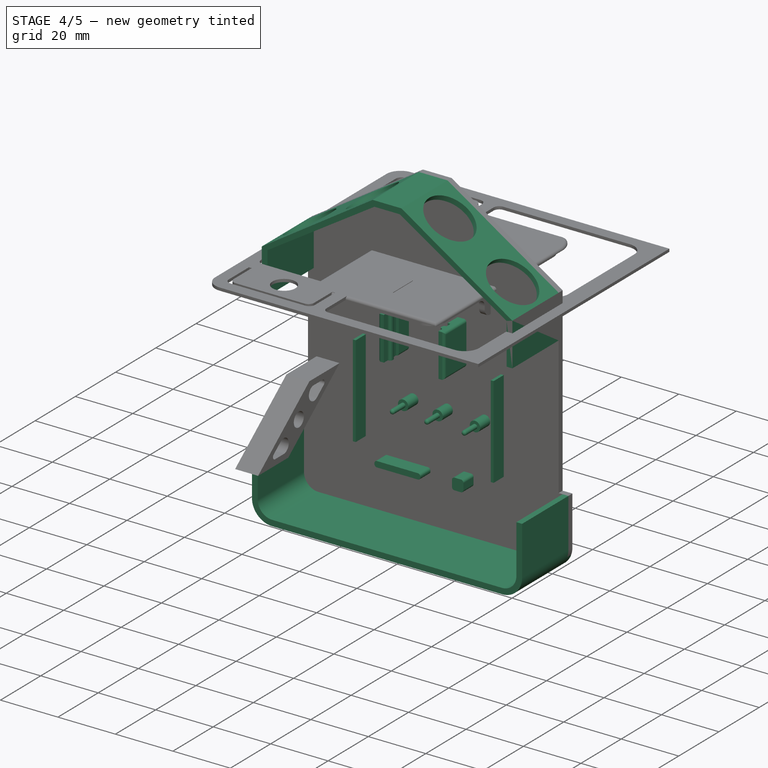
[diagram: stage 4 of 5 — iso view after this stage's code; geometry added in this stage tinted green]
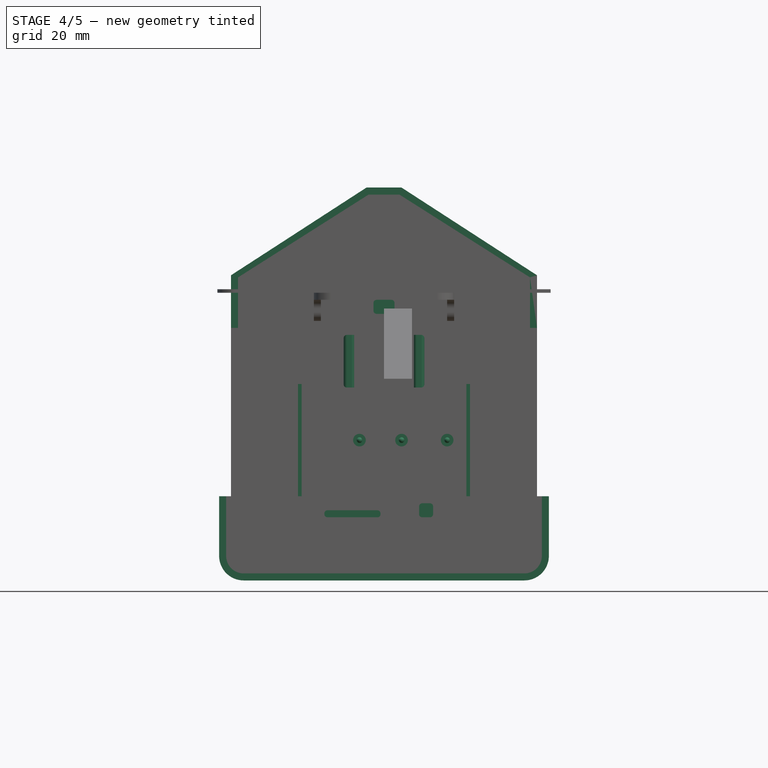
[diagram: stage 4 of 5 — front view after this stage's code; geometry added in this stage tinted green]
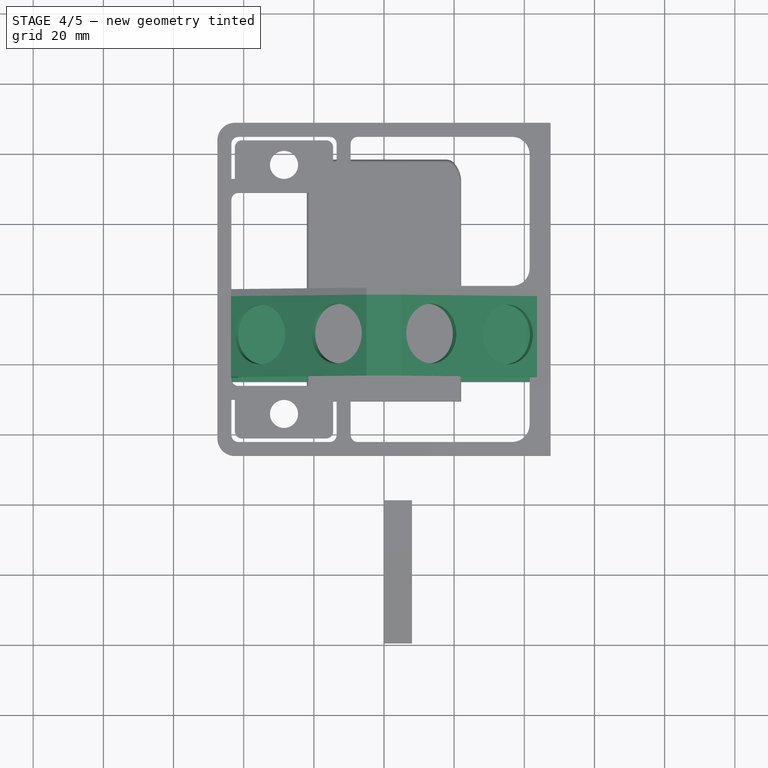
[diagram: stage 4 of 5 — top view after this stage's code; geometry added in this stage tinted green]
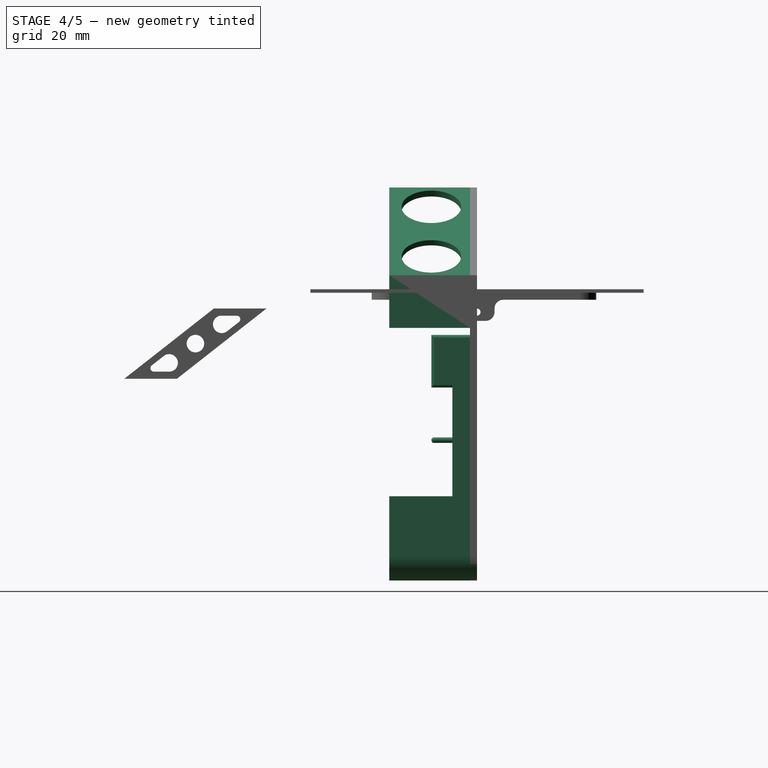
[diagram: stage 4 of 5 — right view after this stage's code; geometry added in this stage tinted green]
FEATURE [Sketcher::SketchObject] Sketch001
  MapMode = 5
  Placement = pos=(0,-2,-2.069e-13) rot=(1,0,0;1.5708rad)
  Support = -> [Pad]
  sketch-geometry (20):
    g0: LineSegment StartX=-43.6135 StartY=5 StartZ=0 EndX=-5 EndY=30 EndZ=0
    g1: LineSegment StartX=-5 StartY=30 StartZ=0 EndX=5 EndY=30 EndZ=0
    g2: LineSegment StartX=5 StartY=30 StartZ=0 EndX=43.6135 EndY=5 EndZ=0
    g3: LineSegment StartX=43.6135 StartY=5 StartZ=0 EndX=43.6135 EndY=-10 EndZ=0
    g4: LineSegment StartX=43.6135 StartY=-10 StartZ=0 EndX=41.6135 EndY=-10 EndZ=0
    g5: LineSegment StartX=41.6135 StartY=-10 StartZ=0 EndX=41.6135 EndY=4.39329 EndZ=0
    g6: LineSegment StartX=41.6135 StartY=4.39329 StartZ=0 EndX=4.39329 EndY=28 EndZ=0
    g7: LineSegment StartX=4.39329 StartY=28 StartZ=0 EndX=-4.39329 EndY=28 EndZ=0
    g8: LineSegment StartX=-4.39329 StartY=28 StartZ=0 EndX=-41.6135 EndY=4.39329 EndZ=0
    g9: LineSegment StartX=-41.6135 StartY=4.39329 StartZ=0 EndX=-41.6135 EndY=-10 EndZ=0
    g10: LineSegment StartX=-41.6135 StartY=-10 StartZ=0 EndX=-43.6135 EndY=-10 EndZ=0
    g11: LineSegment StartX=-43.6135 StartY=-10 StartZ=0 EndX=-43.6135 EndY=5 EndZ=0
    g12: LineSegment StartX=-47 StartY=-58 StartZ=0 EndX=-47 EndY=-82 EndZ=0
    g13: LineSegment StartX=-47 StartY=-82 StartZ=0 EndX=47 EndY=-82 EndZ=0
    g14: LineSegment StartX=47 StartY=-82 StartZ=0 EndX=47 EndY=-58 EndZ=0
    g15: LineSegment StartX=47 StartY=-58 StartZ=0 EndX=45 EndY=-58 EndZ=0
    g16: LineSegment StartX=45 StartY=-58 StartZ=0 EndX=45 EndY=-80 EndZ=0
    g17: LineSegment StartX=45 StartY=-80 StartZ=0 EndX=-45 EndY=-80 EndZ=0
    g18: LineSegment StartX=-45 StartY=-80 StartZ=0 EndX=-45 EndY=-58 EndZ=0
    g19: LineSegment StartX=-45 StartY=-58 StartZ=0 EndX=-47 EndY=-58 EndZ=0
  constraints (52):
    c: Coincident(g0,g1)
    c: Coincident(g1,g2)
    c: Coincident(g2,g3)
    c: Coincident(g3,g4)
    c: Coincident(g4,g5)
    c: Coincident(g5,g6)
    c: Coincident(g6,g7)
    c: Coincident(g7,g8)
    c: Coincident(g8,g9)
    c: Coincident(g9,g10)
    c: Coincident(g10,g11)
    c: Horizontal(g10)
    c: Symmetric(g0,g1,g-2)
    c: Symmetric(g7,g6,g-2)
    c: Symmetric(g5,g8,g-2)
    c: Symmetric(g10,g3,g-2)
    c: Symmetric(g4,g9,g-2)
    c: DistanceX(g4,g3) = 2
    c: DistanceX(g0,g1) = 10
    c: Coincident(g11,g0)
    c: DistanceY(g0,g0) = 25
    c: Distance(g0,g0) = 46
    c: Vertical(g9)
    c: Vertical(g11)
    c: DistanceY(g3,g2) = 15
    c: Symmetric(g0,g2,g-2)
    c: DistanceY(g-1,g0) = 30
    c: Distance(g0,g7) = 2.09
    c: Distance(g0,g8) = 2.09
    c: Coincident(g12,g13)
    c: Coincident(g13,g14)
    c: Coincident(g14,g15)
    c: Coincident(g15,g16)
    c: Coincident(g16,g17)
    c: Coincident(g17,g18)
    c: Coincident(g18,g19)
    c: Coincident(g19,g12)
    c: Vertical(g16)
    c: Vertical(g14)
    c: Vertical(g12)
    c: Vertical(g18)
    c: Horizontal(g19)
    c: Horizontal(g15)
    c: DistanceY(g13,g14) = 24
    c: Symmetric(g12,g13,g-2)
    c: DistanceX(g15,g14) = 2
    c: DistanceY(g13,g16) = 2
    c: DistanceY(g13,g1) = 112
    c: DistanceX(g12,g13) = 94
    c: Symmetric(g18,g15,g-2)
    c: Horizontal(g17)
    c: DistanceY(g6,g1) = 2
FEATURE [PartDesign::Pad] Pad001  label="Bottom - Walls"
  BaseFeature = -> Pad
  Length = 23
  Length2 = 100
  Placement = pos=(0,0,0) rot=(1,0,0;1.5708rad)
  Profile = -> Sketch001
  Type = 0
FEATURE [Sketcher::SketchObject] Sketch002
  MapMode = 5
  Placement = pos=(-15.1631,-2.4176e-12,23.42) rot=(-0.283352,0,0.959016;3.14159rad)
  Support = -> [Pad001]
  sketch-geometry (2):
    g0: Circle CenterX=-2 CenterY=13 CenterZ=0 NormalX=0 NormalY=0 NormalZ=1 AngleXU=0 Radius=8.5
    g1: Circle CenterX=24 CenterY=13 CenterZ=0 NormalX=0 NormalY=0 NormalZ=1 AngleXU=0 Radius=8.5
  constraints (6):
    c: Radius(g0) = 8.5
    c: Radius(g1) = 8.5
    c: DistanceX(g0,g1) = 26
    c: DistanceY(g-1,g1) = 13
    c: DistanceY(g-1,g0) = 13
    c: DistanceX(g0,g-1) = 2
FEATURE [PartDesign::Pocket] Pocket  label="Bottom - SensorL"
  BaseFeature = -> Pad001
  Length = 2
  Length2 = 100
  Placement = pos=(0,0,0) rot=(1,0,0;1.5708rad)
  Profile = -> Sketch002
  Type = 0
FEATURE [Sketcher::SketchObject] Sketch003
  MapMode = 5
  Placement = pos=(15.1631,-2.4176e-12,23.42) rot=(0.283352,0,0.959016;3.14159rad)
  Support = -> [Pocket]
  sketch-geometry (2):
    g0: Circle CenterX=-24 CenterY=13 CenterZ=0 NormalX=0 NormalY=0 NormalZ=1 AngleXU=0 Radius=8.5
    g1: Circle CenterX=2 CenterY=13 CenterZ=0 NormalX=0 NormalY=0 NormalZ=1 AngleXU=0 Radius=8.5
  constraints (6):
    c: Radius(g0) = 8.5
    c: Radius(g1) = 8.5
    c: DistanceX(g0,g1) = 26
    c: DistanceX(g-1,g1) = 2
    c: DistanceY(g-1,g1) = 13
    c: DistanceY(g-1,g0) = 13
FEATURE [PartDesign::Pocket] Pocket001  label="Bottom - SensorR"
  BaseFeature = -> Pocket
  Length = 2
  Length2 = 100
  Placement = pos=(0,0,0) rot=(1,0,0;1.5708rad)
  Profile = -> Sketch003
  Type = 0
FEATURE [PartDesign::Fillet] Fillet
  Base = -> Pocket001 [Edge92,Edge94]
  BaseFeature = -> Pocket001
  Placement = pos=(0,0,0) rot=(1,0,0;1.5708rad)
  Radius = 5
FEATURE [PartDesign::Fillet] Fillet010
  Base = -> Fillet [Edge67,Edge97,Edge84,Edge98]
  BaseFeature = -> Fillet
  Placement = pos=(0,0,0) rot=(1,0,0;1.5708rad)
  Radius = 7
FEATURE [PartDesign::Body] Body001  label="Top"
  Group = -> [Sketch007,Pad003,Sketch017,Pad009,Sketch018,Pocket003,Chamfer003,Chamfer004,Fillet012,Fillet013,Fillet014]
  Origin = -> Origin001
  Placement = pos=(0,0,31) rot=(0,0.707107,0.707107;3.14159rad)
  Tip = -> Fillet014
FEATURE [Sketcher::SketchObject] Sketch019
  MapMode = 5
  Placement = pos=(0,-2,-2.069e-13) rot=(1,0,0;1.5708rad)
  Support = -> [Fillet010]
  sketch-geometry (31):
    g0: LineSegment StartX=-3 StartY=-2 StartZ=0 EndX=3 EndY=-2 EndZ=0
    g1: LineSegment StartX=3 StartY=-2 StartZ=0 EndX=3 EndY=-6 EndZ=0
    g2: LineSegment StartX=3 StartY=-6 StartZ=0 EndX=-3 EndY=-6 EndZ=0
    g3: LineSegment StartX=-3 StartY=-6 StartZ=0 EndX=-3 EndY=-2 EndZ=0
    g4: LineSegment StartX=-8.5 StartY=-12 StartZ=0 EndX=-11.5 EndY=-12 EndZ=0
    g5: LineSegment StartX=-11.5 StartY=-12 StartZ=0 EndX=-11.5 EndY=-27 EndZ=0
    g6: LineSegment StartX=-11.5 StartY=-27 StartZ=0 EndX=-8.5 EndY=-27 EndZ=0
    g7: LineSegment StartX=-8.5 StartY=-27 StartZ=0 EndX=-8.5 EndY=-12 EndZ=0
    g8: LineSegment StartX=11.5 StartY=-12 StartZ=0 EndX=8.5 EndY=-12 EndZ=0
    g9: LineSegment StartX=8.5 StartY=-12 StartZ=0 EndX=8.5 EndY=-27 EndZ=0
    g10: LineSegment StartX=8.5 StartY=-27 StartZ=0 EndX=11.5 EndY=-27 EndZ=0
    g11: LineSegment StartX=11.5 StartY=-27 StartZ=0 EndX=11.5 EndY=-12 EndZ=0
    g12: Circle CenterX=-7 CenterY=-42 CenterZ=0 NormalX=0 NormalY=0 NormalZ=1 AngleXU=0 Radius=1.8
    g13: Circle CenterX=5 CenterY=-42 CenterZ=0 NormalX=0 NormalY=0 NormalZ=1 AngleXU=0 Radius=1.8
    g14: Circle CenterX=18 CenterY=-42 CenterZ=0 NormalX=0 NormalY=0 NormalZ=1 AngleXU=0 Radius=1.8
    g15: LineSegment StartX=10 StartY=-60 StartZ=0 EndX=14 EndY=-60 EndZ=0
    g16: LineSegment StartX=14 StartY=-60 StartZ=0 EndX=14 EndY=-64 EndZ=0
    g17: LineSegment StartX=14 StartY=-64 StartZ=0 EndX=10 EndY=-64 EndZ=0
    g18: LineSegment StartX=10 StartY=-64 StartZ=0 EndX=10 EndY=-60 EndZ=0
    g19: LineSegment StartX=-17 StartY=-62 StartZ=0 EndX=-1 EndY=-62 EndZ=0
    g20: LineSegment StartX=-1 StartY=-62 StartZ=0 EndX=-1 EndY=-64 EndZ=0
    g21: LineSegment StartX=-1 StartY=-64 StartZ=0 EndX=-17 EndY=-64 EndZ=0
    g22: LineSegment StartX=-17 StartY=-64 StartZ=0 EndX=-17 EndY=-62 EndZ=0
    g23: LineSegment StartX=-24.5 StartY=-26 StartZ=0 EndX=-23.5 EndY=-26 EndZ=0
    g24: LineSegment StartX=-23.5 StartY=-26 StartZ=0 EndX=-23.5 EndY=-58 EndZ=0
    g25: LineSegment StartX=-23.5 StartY=-58 StartZ=0 EndX=-24.5 EndY=-58 EndZ=0
    g26: LineSegment StartX=-24.5 StartY=-58 StartZ=0 EndX=-24.5 EndY=-26 EndZ=0
    g27: LineSegment StartX=24.5 StartY=-26 StartZ=0 EndX=23.5 EndY=-26 EndZ=0
    g28: LineSegment StartX=23.5 StartY=-26 StartZ=0 EndX=23.5 EndY=-58 EndZ=0
    g29: LineSegment StartX=23.5 StartY=-58 StartZ=0 EndX=24.5 EndY=-58 EndZ=0
    g30: LineSegment StartX=24.5 StartY=-58 StartZ=0 EndX=24.5 EndY=-26 EndZ=0
  constraints (88):
    c: Coincident(g0,g1)
    c: Coincident(g1,g2)
    c: Coincident(g2,g3)
    c: Coincident(g3,g0)
    c: Horizontal(g2)
    c: Vertical(g1)
    c: Vertical(g3)
    c: Coincident(g4,g5)
    c: Coincident(g5,g6)
    c: Coincident(g6,g7)
    c: Coincident(g7,g4)
    c: Horizontal(g4)
    c: Horizontal(g6)
    c: Vertical(g5)
    c: Vertical(g7)
    c: Coincident(g8,g9)
    c: Coincident(g9,g10)
    c: Coincident(g10,g11)
    c: Coincident(g11,g8)
    c: Horizontal(g8)
    c: Horizontal(g10)
    c: Vertical(g9)
    c: Vertical(g11)
    c: Symmetric(g0,g0,g-2)
    c: Symmetric(g4,g8,g-2)
    c: Symmetric(g5,g10,g-2)
    c: DistanceX(g5,g10) = 23
    c: DistanceY(g10,g8) = 15
    c: DistanceX(g0,g0) = 6
    c: DistanceY(g1,g0) = 4
    c: DistanceY(g8,g1) = 6
    c: DistanceX(g4,g4) = 3
    c: DistanceY(g14,g10) = 15
    c: DistanceY(g13,g14) = 0
    c: DistanceY(g12,g13) = 0
    c: DistanceX(g12,g13) = 12
    c: DistanceX(g13,g14) = 13
    c: Radius(g12) = 1.8
    c: Radius(g13) = 1.8
    c: Radius(g14) = 1.8
    c: Coincident(g15,g16)
    c: Coincident(g16,g17)
    c: Coincident(g17,g18)
    c: Coincident(g18,g15)
    c: Horizontal(g15)
    c: Horizontal(g17)
    c: Vertical(g16)
    c: Vertical(g18)
    c: Coincident(g19,g20)
    c: Coincident(g20,g21)
    c: Coincident(g21,g22)
    c: Coincident(g22,g19)
    c: Horizontal(g19)
    c: Horizontal(g21)
    c: Vertical(g20)
    c: Vertical(g22)
    c: DistanceY(g16,g15) = 4
    c: DistanceX(g17,g16) = 4
    c: DistanceY(g15,g14) = 18
    c: DistanceY(g17,g20) = 0
    c: DistanceX(g20,g17) = 11
    c: DistanceX(g21,g20) = 16
    c: DistanceY(g21,g19) = 2
    c: DistanceX(g15,g14) = 4
    c: DistanceX(g10,g14) = 6.5
    c: DistanceY(g0,g-1) = 2
    c: Coincident(g23,g24)
    c: Coincident(g24,g25)
    c: Coincident(g25,g26)
    c: Coincident(g26,g23)
    c: Horizontal(g23)
    c: Horizontal(g25)
    c: Vertical(g24)
    c: Vertical(g26)
    c: Coincident(g27,g28)
    c: Coincident(g28,g29)
    c: Coincident(g29,g30)
    c: Coincident(g30,g27)
    c: Horizontal(g27)
    c: Horizontal(g29)
    c: Vertical(g28)
    c: Vertical(g30)
    c: Symmetric(g25,g29,g-2)
    c: Symmetric(g27,g23,g-2)
    c: DistanceY(g25,g23) = 32
    c: DistanceX(g23,g23) = 1
    c: DistanceX(g23,g5) = 12
    c: DistanceY(g5,g23) = 1
FEATURE [PartDesign::Pad] Pad010  label="Bottom - InlayB"
  BaseFeature = -> Fillet010
  Length = 5
  Length2 = 100
  Placement = pos=(0,0,0) rot=(1,0,0;1.5708rad)
  Profile = -> Sketch019
  Type = 0
FEATURE [Sketcher::SketchObject] Sketch020
  MapMode = 5
  Placement = pos=(0,-7,-7.199e-13) rot=(1,0,0;1.5708rad)
  Support = -> [Pad010]
  sketch-geometry (11):
    g0: Circle CenterX=-7 CenterY=-42 CenterZ=0 NormalX=0 NormalY=0 NormalZ=1 AngleXU=0 Radius=0.8
    g1: Circle CenterX=5 CenterY=-42 CenterZ=0 NormalX=0 NormalY=0 NormalZ=1 AngleXU=0 Radius=0.8
    g2: Circle CenterX=18 CenterY=-42 CenterZ=0 NormalX=0 NormalY=0 NormalZ=1 AngleXU=0 Radius=0.8
    g3: LineSegment StartX=-11.5 StartY=-12 StartZ=0 EndX=-8.5 EndY=-12 EndZ=0
    g4: LineSegment StartX=-8.5 StartY=-12 StartZ=0 EndX=-8.5 EndY=-27 EndZ=0
    g5: LineSegment StartX=-8.5 StartY=-27 StartZ=0 EndX=-11.5 EndY=-27 EndZ=0
    g6: LineSegment StartX=-11.5 StartY=-27 StartZ=0 EndX=-11.5 EndY=-12 EndZ=0
    g7: LineSegment StartX=8.5 StartY=-12 StartZ=0 EndX=11.5 EndY=-12 EndZ=0
    g8: LineSegment StartX=11.5 StartY=-12 StartZ=0 EndX=11.5 EndY=-27 EndZ=0
    g9: LineSegment StartX=11.5 StartY=-27 StartZ=0 EndX=8.5 EndY=-27 EndZ=0
    g10: LineSegment StartX=8.5 StartY=-27 StartZ=0 EndX=8.5 EndY=-12 EndZ=0
  constraints (31):
    c: Radius(g0) = 0.8
    c: Radius(g1) = 0.8
    c: Radius(g2) = 0.8
    c: DistanceX(g0,g1) = 12
    c: DistanceX(g1,g2) = 13
    c: DistanceY(g1,g0) = 0
    c: DistanceY(g2,g1) = 0
    c: Coincident(g3,g4)
    c: Coincident(g4,g5)
    c: Coincident(g5,g6)
    c: Coincident(g6,g3)
    c: Horizontal(g3)
    c: Horizontal(g5)
    c: Vertical(g4)
    c: Vertical(g6)
    c: Coincident(g7,g8)
    c: Coincident(g8,g9)
    c: Coincident(g9,g10)
    c: Coincident(g10,g7)
    c: Horizontal(g7)
    c: Horizontal(g9)
    c: Vertical(g8)
    c: Vertical(g10)
    c: Symmetric(g5,g8,g-2)
    c: Symmetric(g3,g7,g-2)
    c: DistanceX(g3,g3) = 3
    c: DistanceY(g8,g7) = 15
    c: DistanceX(g3,g-1) = 8.5
    c: DistanceY(g7,g-1) = 12
    c: DistanceY(g2,g8) = 15
    c: DistanceX(g8,g2) = 6.5
FEATURE [PartDesign::Pad] Pad011  label="Bottom - InlayT"
  BaseFeature = -> Pad010
  Length = 6
  Length2 = 100
  Placement = pos=(0,0,0) rot=(1,0,0;1.5708rad)
  Profile = -> Sketch020
  Type = 0
FEATURE [Sketcher::SketchObject] Sketch021
  MapMode = 5
  Placement = pos=(0,2.7629e-12,-27) rot=(1,0,0;3.14159rad)
  Support = -> [Pad011]
  sketch-geometry (12):
    g0: LineSegment StartX=-9.5 StartY=7 StartZ=0 EndX=9.5 EndY=7 EndZ=0
    g1: LineSegment StartX=9.5 StartY=7 StartZ=0 EndX=9.5 EndY=9 EndZ=0
    g2: LineSegment StartX=9.5 StartY=9 StartZ=0 EndX=8.5 EndY=9 EndZ=0
    g3: LineSegment StartX=8.5 StartY=9 StartZ=0 EndX=8.5 EndY=11 EndZ=0
    g4: LineSegment StartX=8.5 StartY=11 StartZ=0 EndX=9.5 EndY=11 EndZ=0
    g5: LineSegment StartX=9.5 StartY=11 StartZ=0 EndX=9.5 EndY=15 EndZ=0
    g6: LineSegment StartX=9.5 StartY=15 StartZ=0 EndX=-9.5 EndY=15 EndZ=0
    g7: LineSegment StartX=-9.5 StartY=15 StartZ=0 EndX=-9.5 EndY=11 EndZ=0
    g8: LineSegment StartX=-9.5 StartY=11 StartZ=0 EndX=-8.5 EndY=11 EndZ=0
    g9: LineSegment StartX=-8.5 StartY=11 StartZ=0 EndX=-8.5 EndY=9 EndZ=0
    g10: LineSegment StartX=-8.5 StartY=9 StartZ=0 EndX=-9.5 EndY=9 EndZ=0
    g11: LineSegment StartX=-9.5 StartY=9 StartZ=0 EndX=-9.5 EndY=7 EndZ=0
  constraints (33):
    c: Coincident(g0,g1)
    c: Coincident(g1,g2)
    c: Coincident(g2,g3)
    c: Coincident(g3,g4)
    c: Coincident(g4,g5)
    c: Coincident(g5,g6)
    c: Coincident(g6,g7)
    c: Coincident(g7,g8)
    c: Coincident(g8,g9)
    c: Coincident(g9,g10)
    c: Coincident(g10,g11)
    c: Coincident(g11,g0)
    c: Vertical(g7)
    c: Vertical(g5)
    c: Vertical(g3)
    c: Vertical(g9)
    c: Vertical(g11)
    c: Vertical(g1)
    c: Horizontal(g10)
    c: Horizontal(g8)
    c: Horizontal(g4)
    c: Horizontal(g2)
    c: Symmetric(g6,g5,g-2)
    c: Symmetric(g8,g3,g-2)
    c: DistanceX(g7,g10) = 0
    c: Symmetric(g1,g10,g-2)
    c: Horizontal(g0)
    c: DistanceX(g6,g5) = 19
    c: DistanceX(g7,g8) = 1
    c: DistanceY(g0,g10) = 2
    c: DistanceY(g10,g7) = 2
    c: DistanceY(g4,g5) = 4
    c: DistanceY(g-1,g0) = 7
FEATURE [PartDesign::Pocket] Pocket004  label="Bottom - ArdClip"
  BaseFeature = -> Pad011
  Length = 15
  Length2 = 100
  Placement = pos=(0,0,0) rot=(1,0,0;1.5708rad)
  Profile = -> Sketch021
  Type = 0
FEATURE [PartDesign::Fillet] Fillet015
  Base = -> Pocket004 [Edge253,Edge250,Edge257,Edge256,Edge248,Edge246,Edge260]
  BaseFeature = -> Pocket004
  Placement = pos=(0,0,0) rot=(1,0,0;1.5708rad)
  Radius = 0.8
FEATURE [PartDesign::Fillet] Fillet016
  Base = -> Fillet015 [Edge134,Edge132,Edge142,Edge140,Edge7,Edge20,Edge21,Edge160,Edge228,Edge157,Edge174,Edge172,Edge138,Edge137,Edge130,Edge129,Edge37,Edge26,Edge227,Edge158,Edge169,Edge170,Edge229,Edge28]
  BaseFeature = -> Fillet015
  Placement = pos=(0,0,0) rot=(1,0,0;1.5708rad)
  Radius = 0.9
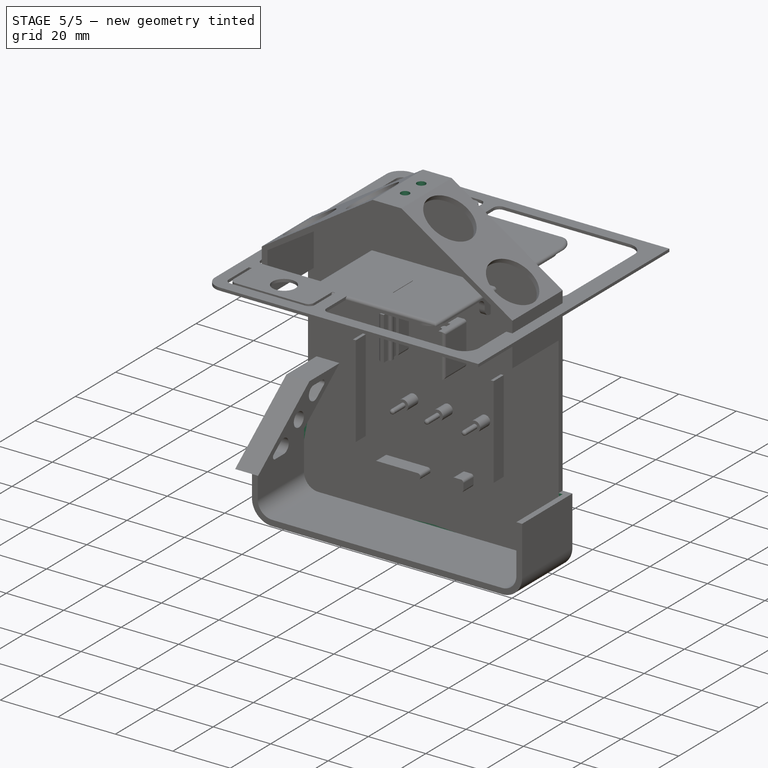
[diagram: stage 5 of 5 — iso view after this stage's code; geometry added in this stage tinted green]
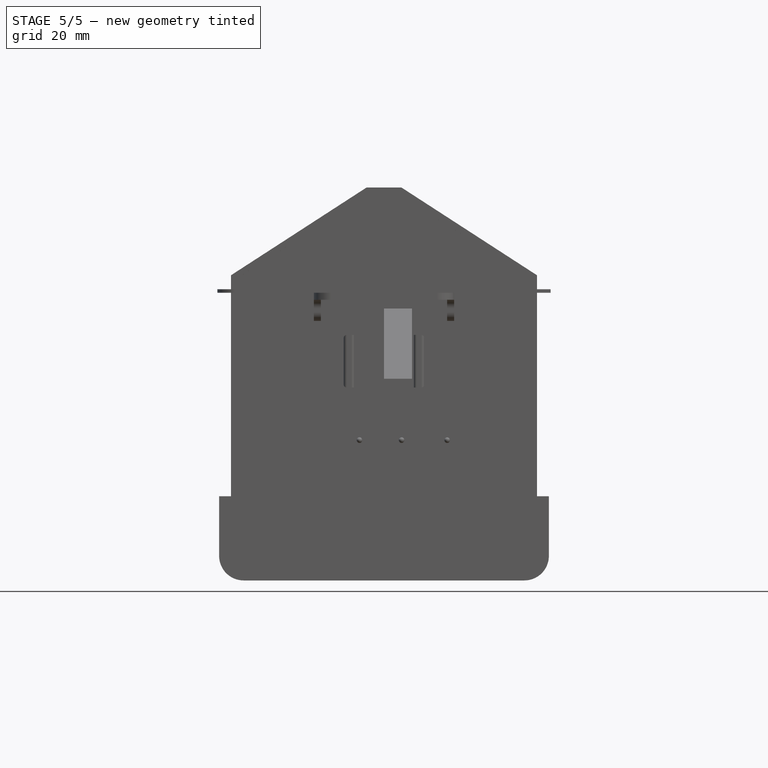
[diagram: stage 5 of 5 — front view after this stage's code; geometry added in this stage tinted green]
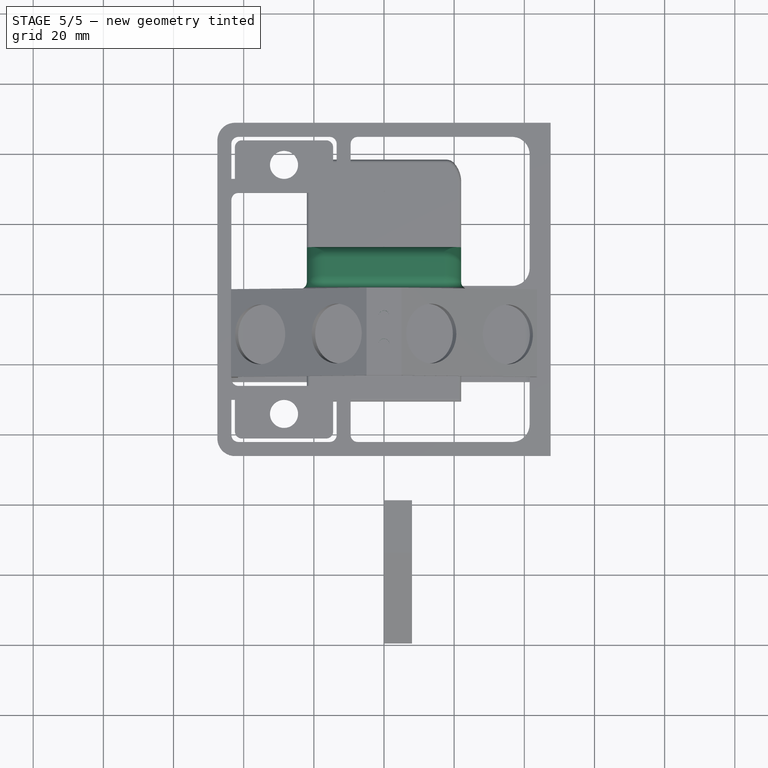
[diagram: stage 5 of 5 — top view after this stage's code; geometry added in this stage tinted green]
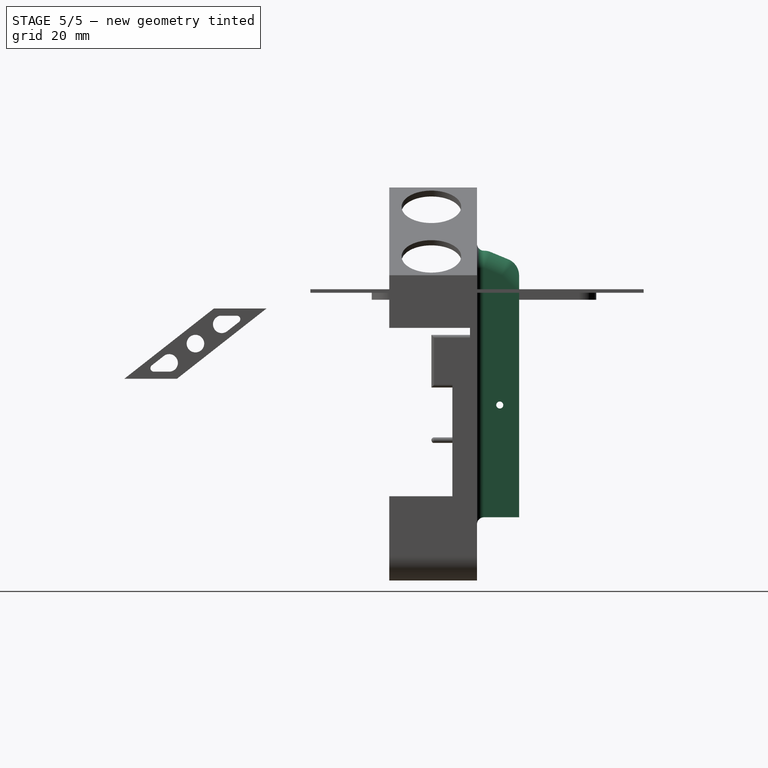
[diagram: stage 5 of 5 — right view after this stage's code; geometry added in this stage tinted green]
FEATURE [Sketcher::SketchObject] Sketch007
  MapMode = 5
  Placement = pos=(0,0,0) rot=(1,0,0;1.5708rad)
  Support = -> [XZ_Plane001]
  sketch-geometry (15):
    g0: LineSegment StartX=-5 StartY=30 StartZ=0 EndX=5 EndY=30 EndZ=0
    g1: LineSegment StartX=-5 StartY=30 StartZ=0 EndX=-43.6135 EndY=5 EndZ=0
    g2: LineSegment StartX=5 StartY=30 StartZ=0 EndX=43.6135 EndY=5 EndZ=0
    g3: LineSegment StartX=-43.6135 StartY=5 StartZ=0 EndX=-43.6135 EndY=-58 EndZ=0
    g4: LineSegment StartX=43.6135 StartY=5 StartZ=0 EndX=43.6135 EndY=-58 EndZ=0
    g5: LineSegment StartX=-47 StartY=-58 StartZ=0 EndX=-43.6135 EndY=-58 EndZ=0
    g6: LineSegment StartX=47 StartY=-58 StartZ=0 EndX=47 EndY=-82 EndZ=0
    g7: LineSegment StartX=47 StartY=-82 StartZ=0 EndX=-47 EndY=-82 EndZ=0
    g8: LineSegment StartX=-47 StartY=-82 StartZ=0 EndX=-47 EndY=-58 EndZ=0
    g9: LineSegment StartX=43.6135 StartY=-58 StartZ=0 EndX=47 EndY=-58 EndZ=0
    g10: LineSegment StartX=-20 StartY=3 StartZ=0 EndX=20 EndY=3 EndZ=0
    g11: LineSegment StartX=20 StartY=3 StartZ=0 EndX=20 EndY=-62 EndZ=0
    g12: LineSegment StartX=20 StartY=-62 StartZ=0 EndX=-20 EndY=-62 EndZ=0
    g13: LineSegment StartX=-20 StartY=-62 StartZ=0 EndX=-20 EndY=3 EndZ=0
    g14: Circle CenterX=6e-16 CenterY=-76 CenterZ=0 NormalX=0 NormalY=0 NormalZ=1 AngleXU=0 Radius=3.5
  constraints (40):
    c: Symmetric(g0,g0,g-2)
    c: Symmetric(g1,g2,g-2)
    c: Coincident(g1,g0)
    c: Distance(g1,g0) = 46
    c: DistanceX(g0,g0) = 10
    c: Coincident(g2,g0)
    c: DistanceY(g1,g0) = 25
    c: Coincident(g3,g1)
    c: Vertical(g3)
    c: Coincident(g4,g2)
    c: Vertical(g4)
    c: DistanceY(g-1,g0) = 30
    c: Coincident(g9,g6)
    c: Coincident(g6,g7)
    c: Coincident(g7,g8)
    c: Coincident(g8,g5)
    c: Horizontal(g5)
    c: Vertical(g6)
    c: Vertical(g8)
    c: Symmetric(g7,g6,g-2)
    c: DistanceX(g7,g6) = 94
    c: DistanceY(g6,g9) = 24
    c: DistanceY(g6,g0) = 112
    c: Coincident(g5,g3)
    c: Tangent(g5,g9)
    c: Coincident(g4,g9)
    c: Coincident(g10,g11)
    c: Coincident(g11,g12)
    c: Coincident(g12,g13)
    c: Coincident(g13,g10)
    c: Horizontal(g10)
    c: Vertical(g11)
    c: Vertical(g13)
    c: Symmetric(g12,g11,g-2)
    c: DistanceX(g12,g11) = 40
    c: DistanceY(g11,g10) = 65
    c: DistanceY(g6,g11) = 20
    c: Radius(g14) = 3.5
    c: DistanceY(g6,g14) = 6
    c: DistanceX(g14,g6) = 47
FEATURE [PartDesign::Pad] Pad003  label="Top - Base"
  Length = 2
  Length2 = 100
  Placement = pos=(0,0,0) rot=(1,0,0;1.5708rad)
  Profile = -> Sketch007
  Type = 0
FEATURE [Sketcher::SketchObject] Sketch017
  MapMode = 5
  Placement = pos=(0,1e-16,0) rot=(-1,0,0;1.5708rad)
  Support = -> [Pad003]
  sketch-geometry (8):
    g0: LineSegment StartX=-20 StartY=62 StartZ=0 EndX=20 EndY=62 EndZ=0
    g1: LineSegment StartX=20 StartY=62 StartZ=0 EndX=20 EndY=-3 EndZ=0
    g2: LineSegment StartX=20 StartY=-3 StartZ=0 EndX=-20 EndY=-3 EndZ=0
    g3: LineSegment StartX=-20 StartY=-3 StartZ=0 EndX=-20 EndY=62 EndZ=0
    g4: LineSegment StartX=-22 StartY=64 StartZ=0 EndX=22 EndY=64 EndZ=0
    g5: LineSegment StartX=22 StartY=64 StartZ=0 EndX=22 EndY=-12 EndZ=0
    g6: LineSegment StartX=22 StartY=-12 StartZ=0 EndX=-22 EndY=-12 EndZ=0
    g7: LineSegment StartX=-22 StartY=-12 StartZ=0 EndX=-22 EndY=64 EndZ=0
  constraints (22):
    c: Coincident(g0,g1)
    c: Coincident(g1,g2)
    c: Coincident(g2,g3)
    c: Coincident(g3,g0)
    c: Horizontal(g0)
    c: Vertical(g1)
    c: Vertical(g3)
    c: Symmetric(g2,g1,g-2)
    c: DistanceX(g2,g1) = 40
    c: DistanceY(g1,g0) = 65
    c: DistanceY(g1,g-1) = 3
    c: Coincident(g4,g5)
    c: Coincident(g5,g6)
    c: Coincident(g6,g7)
    c: Coincident(g7,g4)
    c: Horizontal(g4)
    c: Vertical(g5)
    c: Vertical(g7)
    c: Symmetric(g6,g5,g-2)
    c: DistanceY(g5,g4) = 76
    c: DistanceX(g1,g5) = 2
    c: DistanceY(g0,g4) = 2
FEATURE [PartDesign::Pad] Pad009
  BaseFeature = -> Pad003
  Length = 12
  Length2 = 100
  Placement = pos=(0,0,0) rot=(1,0,0;1.5708rad)
  Profile = -> Sketch017
  Type = 0
FEATURE [Sketcher::SketchObject] Sketch018
  MapMode = 5
  Placement = pos=(-22,0,0) rot=(0.707107,0,-0.707107;3.14159rad)
  Support = -> [Pad009]
  sketch-geometry (1):
    g0: Circle CenterX=32 CenterY=-6.5 CenterZ=0 NormalX=0 NormalY=0 NormalZ=1 AngleXU=0 Radius=1
  constraints (3):
    c: Radius(g0) = 1
    c: DistanceX(g-1,g0) = 32
    c: DistanceY(g0,g-1) = 6.5
FEATURE [PartDesign::Pocket] Pocket003
  BaseFeature = -> Pad009
  Length = 44
  Length2 = 100
  Placement = pos=(0,0,0) rot=(1,0,0;1.5708rad)
  Profile = -> Sketch018
  Type = 0
FEATURE [PartDesign::Chamfer] Chamfer003
  Base = -> Pocket003 [Edge46]
  BaseFeature = -> Pocket003
  Placement = pos=(0,0,0) rot=(1,0,0;1.5708rad)
  Size = 5
FEATURE [PartDesign::Chamfer] Chamfer004
  Base = -> Chamfer003 [Edge8]
  BaseFeature = -> Chamfer003
  Placement = pos=(0,0,0) rot=(1,0,0;1.5708rad)
  Size = 4
FEATURE [PartDesign::Fillet] Fillet012
  Base = -> Chamfer004 [Edge9,Edge12,Edge27,Edge4,Edge2,Edge1,Edge26,Edge11,Edge8]
  BaseFeature = -> Chamfer004
  Placement = pos=(0,0,0) rot=(1,0,0;1.5708rad)
  Radius = 5
FEATURE [PartDesign::Fillet] Fillet013
  Base = -> Fillet012 [Edge68,Edge66]
  BaseFeature = -> Fillet012
  Placement = pos=(0,0,0) rot=(1,0,0;1.5708rad)
  Radius = 7
FEATURE [PartDesign::Fillet] Fillet014
  Base = -> Fillet013 [Edge15,Edge16]
  BaseFeature = -> Fillet013
  Placement = pos=(0,0,0) rot=(1,0,0;1.5708rad)
  Radius = 2
FEATURE [Sketcher::SketchObject] Sketch022
  MapMode = 5
  Placement = pos=(0,-3.0966e-12,30) rot=(0,0,1;3.14159rad)
  Support = -> [Fillet016]
  sketch-geometry (2):
    g0: Circle CenterX=0 CenterY=16 CenterZ=0 NormalX=0 NormalY=0 NormalZ=1 AngleXU=0 Radius=1.5
    g1: Circle CenterX=0 CenterY=8 CenterZ=0 NormalX=0 NormalY=0 NormalZ=1 AngleXU=0 Radius=1.5
  constraints (6):
    c: Radius(g0) = 1.5
    c: Radius(g1) = 1.5
    c: DistanceX(g0,g1) = 0
    c: DistanceX(g1,g-1) = 0
    c: DistanceY(g-1,g1) = 8
    c: DistanceY(g1,g0) = 8
FEATURE [PartDesign::Pocket] Pocket005  label="Bottom - FrontSensor (optional)"
  BaseFeature = -> Fillet016
  Length = 2
  Length2 = 100
  Placement = pos=(0,0,0) rot=(1,0,0;1.5708rad)
  Profile = -> Sketch022
  Type = 0
FEATURE [Sketcher::SketchObject] Sketch023
  MapMode = 5
  Placement = pos=(0,1e-16,0) rot=(-1,0,0;1.5708rad)
  Support = -> [Pocket005]
  sketch-geometry (8):
    g0: LineSegment StartX=-18.2 StartY=71 StartZ=0 EndX=-18 EndY=71 EndZ=0
    g1: LineSegment StartX=-18 StartY=71 StartZ=0 EndX=-18 EndY=-9 EndZ=0
    g2: LineSegment StartX=-18 StartY=-9 StartZ=0 EndX=-18.2 EndY=-9 EndZ=0
    g3: LineSegment StartX=-18.2 StartY=-9 StartZ=0 EndX=-18.2 EndY=71 EndZ=0
    g4: LineSegment StartX=18 StartY=71 StartZ=0 EndX=18.2 EndY=71 EndZ=0
    g5: LineSegment StartX=18.2 StartY=71 StartZ=0 EndX=18.2 EndY=-9 EndZ=0
    g6: LineSegment StartX=18.2 StartY=-9 StartZ=0 EndX=18 EndY=-9 EndZ=0
    g7: LineSegment StartX=18 StartY=-9 StartZ=0 EndX=18 EndY=71 EndZ=0
  constraints (22):
    c: Coincident(g0,g1)
    c: Coincident(g1,g2)
    c: Coincident(g2,g3)
    c: Coincident(g3,g0)
    c: Horizontal(g0)
    c: Horizontal(g2)
    c: Vertical(g1)
    c: Vertical(g3)
    c: Coincident(g4,g5)
    c: Coincident(g5,g6)
    c: Coincident(g6,g7)
    c: Coincident(g7,g4)
    c: Horizontal(g4)
    c: Horizontal(g6)
    c: Vertical(g5)
    c: Vertical(g7)
    c: Symmetric(g0,g4,g-2)
    c: Symmetric(g1,g6,g-2)
    c: DistanceX(g4,g4) = 0.2
    c: DistanceX(g-1,g6) = 18
    c: DistanceY(g5,g4) = 80
    c: DistanceY(g6,g-1) = 9
FEATURE [PartDesign::Pocket] Pocket006
  BaseFeature = -> Pocket005
  Length = 0.2
  Length2 = 100
  Placement = pos=(0,0,0) rot=(1,0,0;1.5708rad)
  Profile = -> Sketch023
  Type = 0
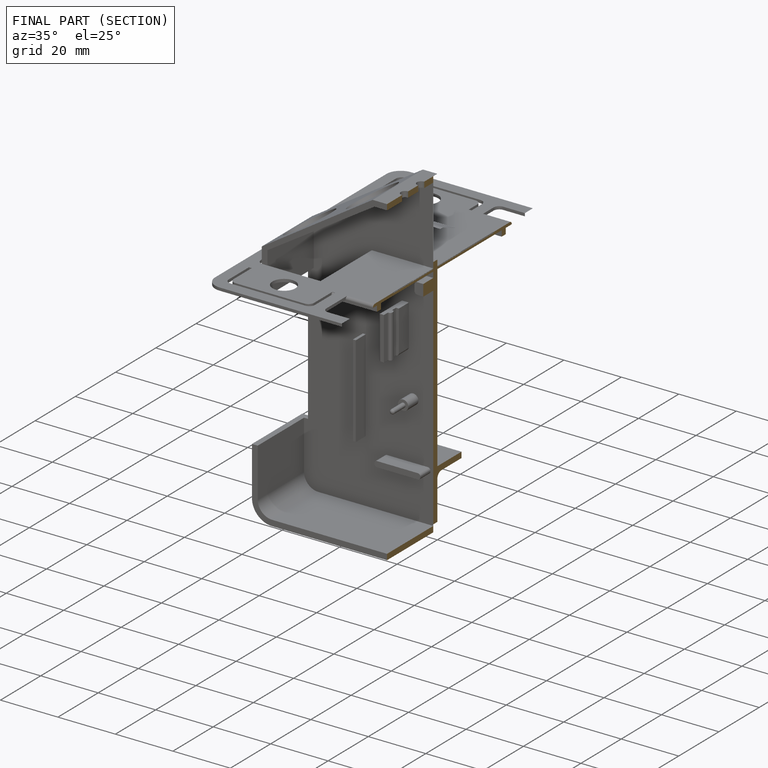
[diagram: finished part — half-section view (interior)]
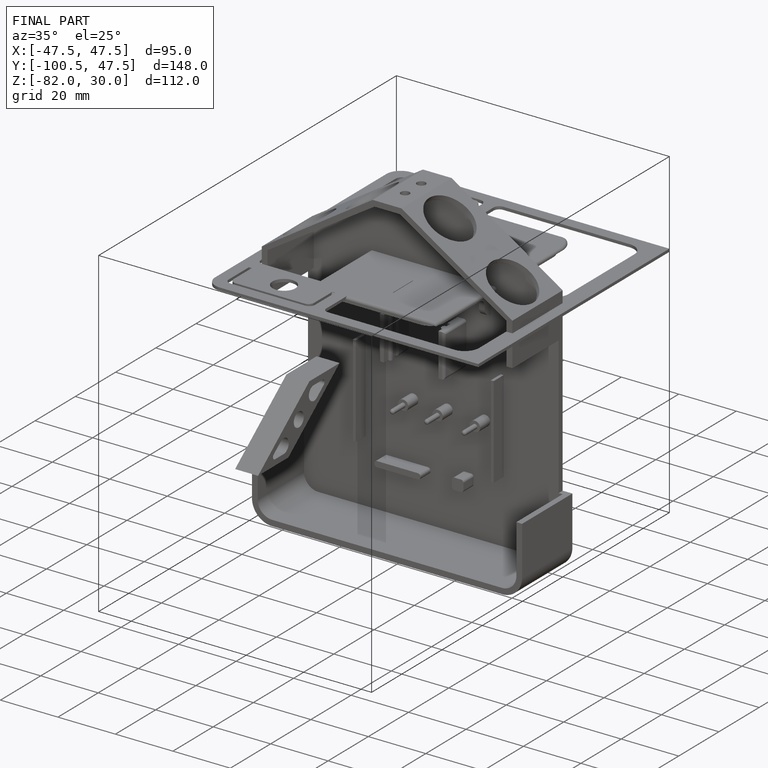
[diagram: finished part — iso view with bounding-box wireframe]
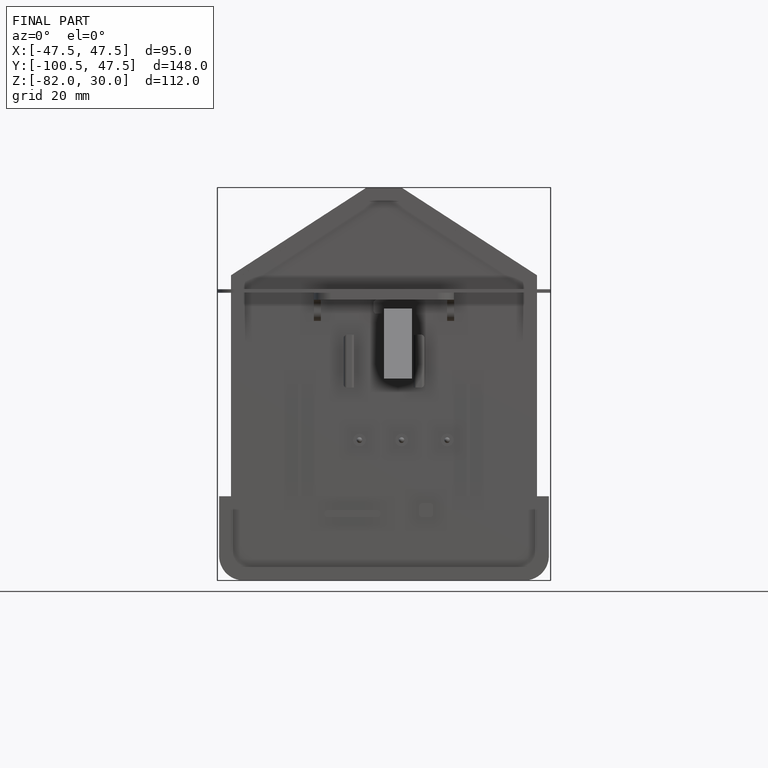
[diagram: finished part — front view with bounding-box wireframe]
